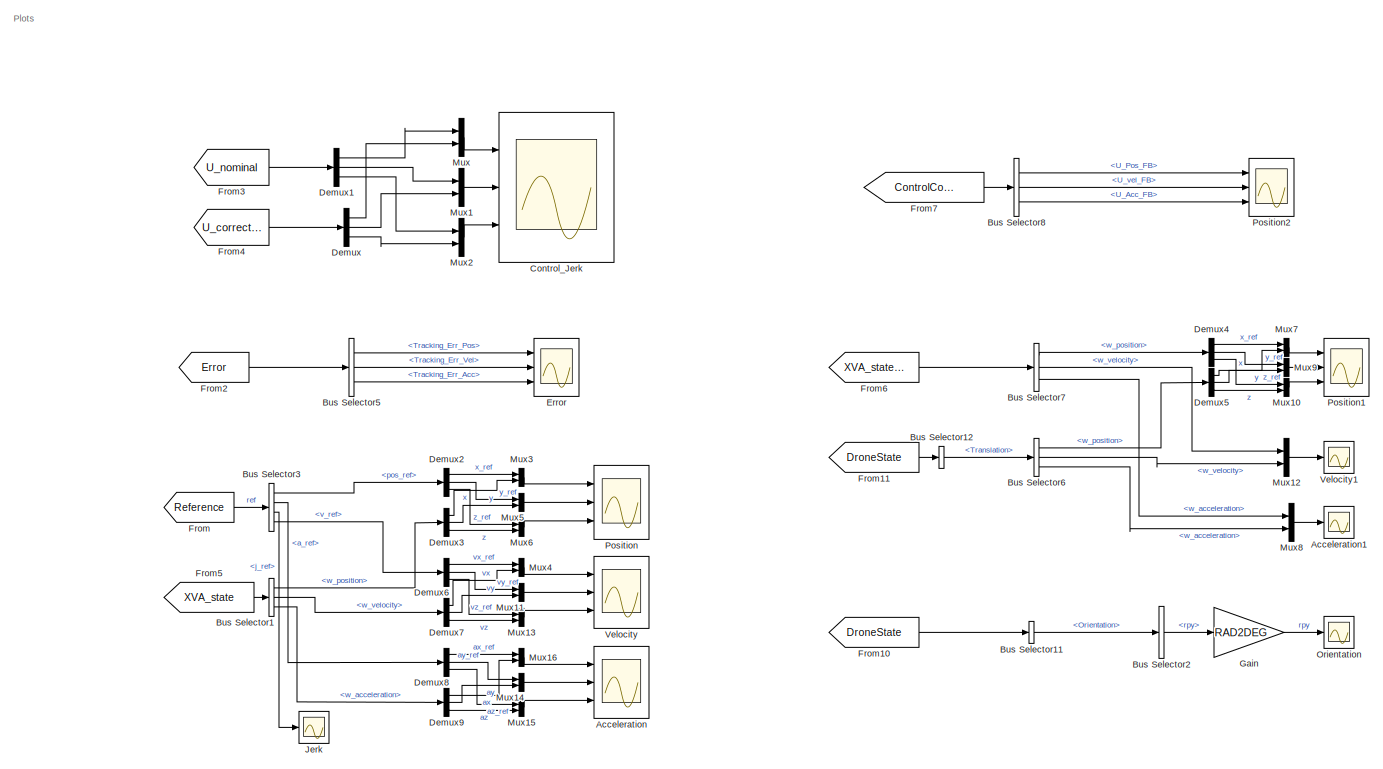
[diagram: root canvas - part 1/7, top center region]
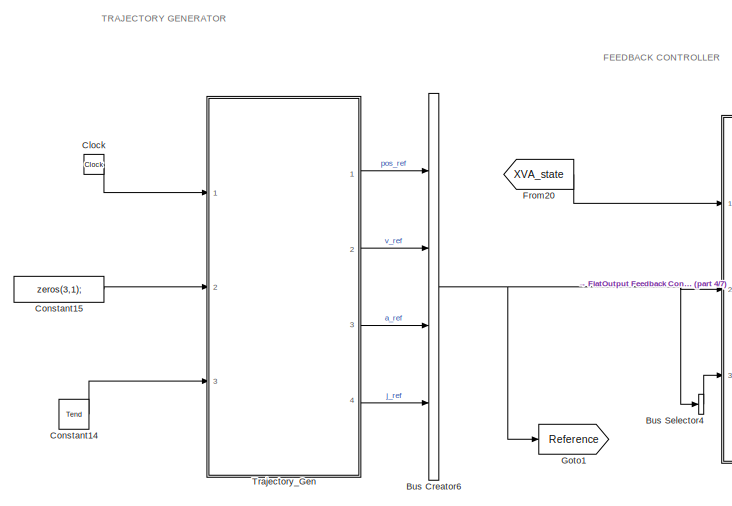
[diagram: root canvas - part 2/7, middle left region]
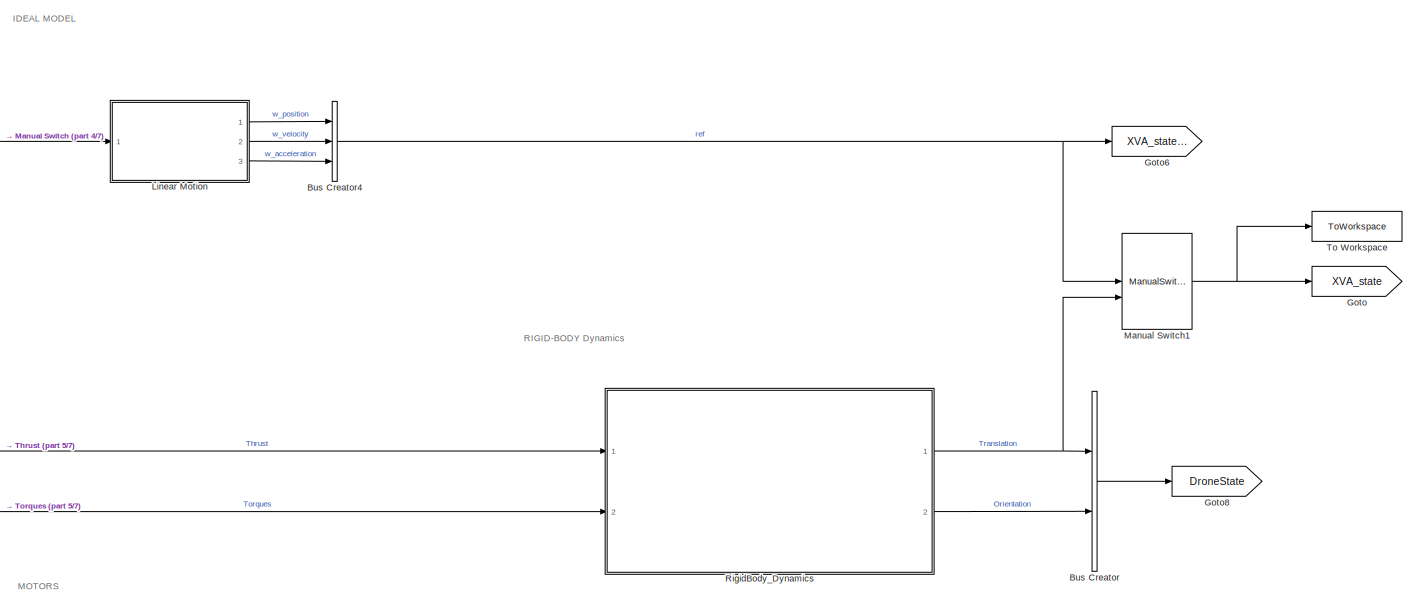
[diagram: root canvas - part 3/7, middle right region]
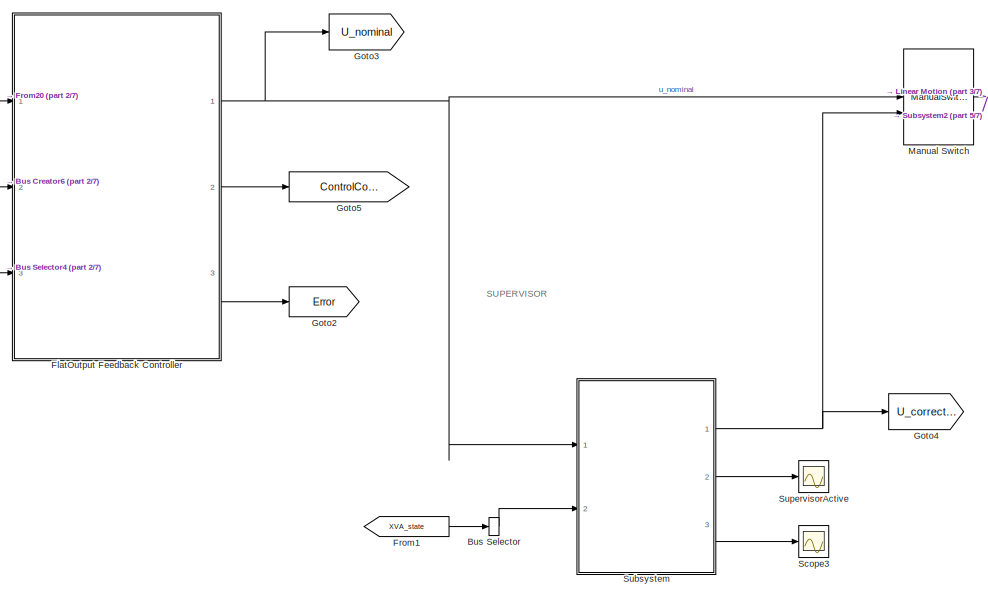
[diagram: root canvas - part 4/7, middle left region]
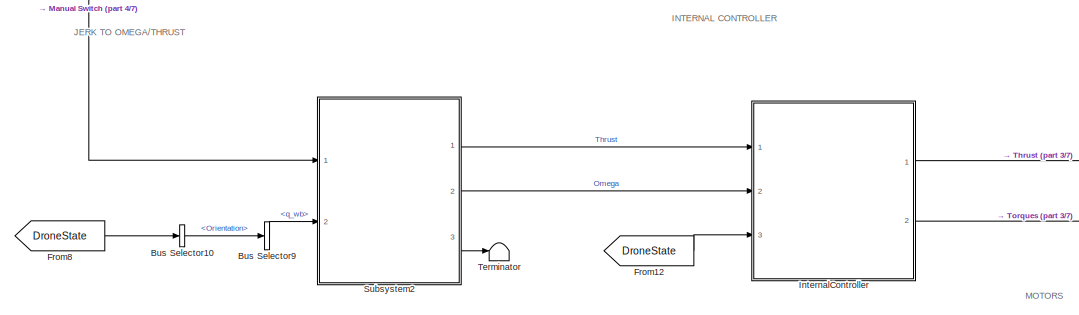
[diagram: root canvas - part 5/7, central region]
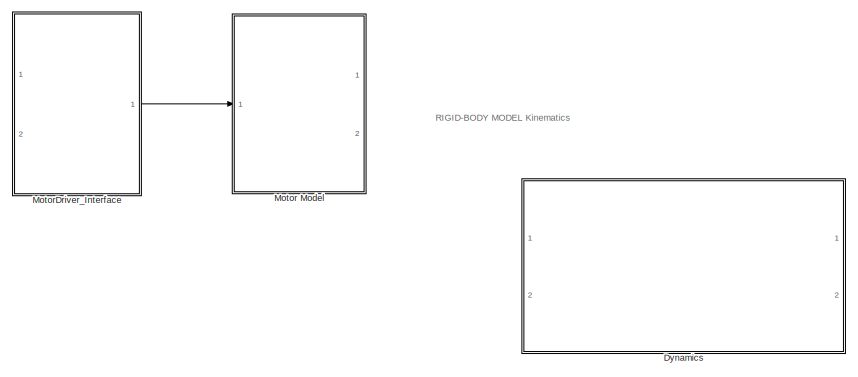
[diagram: root canvas - part 6/7, bottom right region]
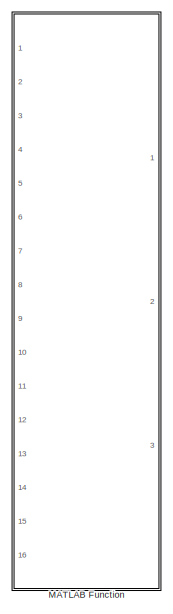
[diagram: root canvas - part 7/7, bottom left region]
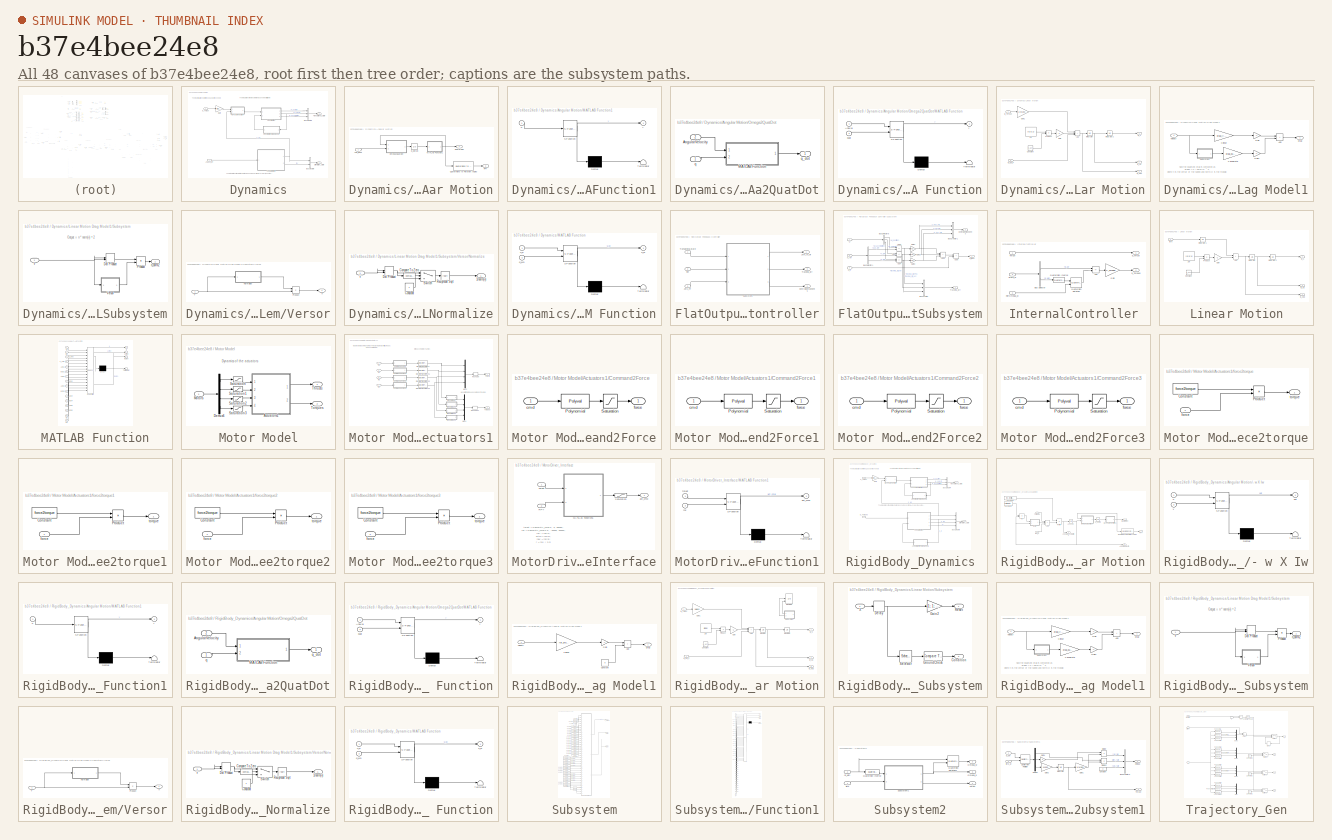
[diagram: thumbnail index - all 48 canvases of the model, root first then tree order]
MODEL slx_b37e4bee24e8
KIND model
CONFIG AbsTol = auto
CONFIG EnableMultiTasking = off
CONFIG FixedStep = sim_dt
CONFIG MaxStep = auto
CONFIG MinStep = auto
CONFIG RelTol = 1e-3
CONFIG SampleTimeConstraint = Unconstrained
CONFIG SolverName = ode1
CONFIG StartTime = 0.0
CONFIG StopTime = Tend
BLOCK [Scope] Acceleration
  Floating = off
  NumInputPorts = 3
  Ports = [3]
  ScopeSpecificationString = Simulink.scopes.TimeScopeBlockCfg('CurrentConfiguration', extmgr.ConfigurationSet(extmgr.Configuration('Core','General UI',true),extmgr.Configuration('Core','Source UI',true),extmgr.Configuration('Sources','WiredSimulink',true,'DataLoggingVariableName','ScopeData2'),extmgr.Configuration('Visuals','Time Domain',true,'SerializedDisplays',{struct('MinYLimReal','-3.42129','MaxYLimReal','1.6733','YLabe...<+3464ch>
BLOCK [Scope] Acceleration1
  Floating = off
  NumInputPorts = 1
  Ports = [1]
  ScopeSpecificationString = Simulink.scopes.TimeScopeBlockCfg('CurrentConfiguration', extmgr.ConfigurationSet(extmgr.Configuration('Core','General UI',true),extmgr.Configuration('Core','Source UI',true),extmgr.Configuration('Sources','WiredSimulink',true,'DataLoggingVariableName','ScopeData1'),extmgr.Configuration('Visuals','Time Domain',true,'SerializedDisplays',{struct('MinYLimReal','-0.01495','MaxYLimReal','0.01574','YLab...<+1644ch>
BLOCK [BusCreator] Bus Creator
  DisplayOption = bar
  InheritFromInputs = on
  Inputs = 2
  Ports = [2, 1]
BLOCK [BusCreator] Bus Creator4
  DisplayOption = bar
  InheritFromInputs = on
  Inputs = 3
  Ports = [3, 1]
BLOCK [BusCreator] Bus Creator6
  DisplayOption = bar
  InheritFromInputs = on
  Inputs = 4
  Ports = [4, 1]
BLOCK [BusSelector] Bus Selector
  OutputAsBus = on
  OutputSignals = w_position,w_velocity,w_acceleration
  Ports = [1, 1]
BLOCK [BusSelector] Bus Selector1
  OutputSignals = w_position,w_velocity,w_acceleration
  Ports = [1, 3]
BLOCK [BusSelector] Bus Selector10
  OutputSignals = Orientation
  Ports = [1, 1]
BLOCK [BusSelector] Bus Selector11
  OutputSignals = Orientation
  Ports = [1, 1]
BLOCK [BusSelector] Bus Selector12
  OutputSignals = Translation
  Ports = [1, 1]
BLOCK [BusSelector] Bus Selector2
  OutputSignals = rpy
  Ports = [1, 1]
BLOCK [BusSelector] Bus Selector3
  OutputSignals = pos_ref,a_ref,j_ref,v_ref
  Ports = [1, 4]
BLOCK [BusSelector] Bus Selector4
  OutputAsBus = on
  OutputSignals = j_ref
  Ports = [1, 1]
BLOCK [BusSelector] Bus Selector5
  OutputSignals = Tracking_Err_Pos,Tracking_Err_Vel,Tracking_Err_Acc
  Ports = [1, 3]
BLOCK [BusSelector] Bus Selector6
  OutputSignals = w_position,w_velocity,w_acceleration
  Ports = [1, 3]
BLOCK [BusSelector] Bus Selector7
  OutputSignals = w_position,w_velocity,w_acceleration
  Ports = [1, 3]
BLOCK [BusSelector] Bus Selector8
  OutputSignals = U_Pos_FB,U_vel_FB,U_Acc_FB
  Ports = [1, 3]
BLOCK [BusSelector] Bus Selector9
  OutputSignals = q_wb
  Ports = [1, 1]
BLOCK [Clock] Clock
BLOCK [Constant] Constant14
  Value = Tend
BLOCK [Constant] Constant15
  Value = zeros(3,1);
BLOCK [Scope] Control_Jerk
  Floating = off
  NumInputPorts = 3
  Ports = [3]
  ScopeSpecificationString = Simulink.scopes.TimeScopeBlockCfg('CurrentConfiguration', extmgr.ConfigurationSet(extmgr.Configuration('Core','General UI',true),extmgr.Configuration('Core','Source UI',true),extmgr.Configuration('Sources','WiredSimulink',true),extmgr.Configuration('Visuals','Time Domain',true,'SerializedDisplays',{struct('MinYLimReal','-10.21314','MaxYLimReal','-8.21314','YLabelReal','','MinYLimMag','0.00000','Ma...<+2837ch>
BLOCK [Demux] Demux
  Outputs = 3
  Ports = [1, 3]
BLOCK [Demux] Demux1
  Outputs = 3
  Ports = [1, 3]
BLOCK [Demux] Demux2
  Outputs = 3
  Ports = [1, 3]
BLOCK [Demux] Demux3
  Outputs = 3
  Ports = [1, 3]
BLOCK [Demux] Demux4
  Outputs = 3
  Ports = [1, 3]
BLOCK [Demux] Demux5
  Outputs = 3
  Ports = [1, 3]
BLOCK [Demux] Demux6
  Outputs = 3
  Ports = [1, 3]
BLOCK [Demux] Demux7
  Outputs = 3
  Ports = [1, 3]
BLOCK [Demux] Demux8
  Outputs = 3
  Ports = [1, 3]
BLOCK [Demux] Demux9
  Outputs = 3
  Ports = [1, 3]
BLOCK [SubSystem] Dynamics
  Commented = on
  Ports = [2, 2]
  RequestExecContextInheritance = off
BLOCK [SubSystem] Dynamics/Angular Motion
  Ports = [1, 2]
  RequestExecContextInheritance = off
BLOCK [Inport] Dynamics/Angular Motion/Ang_input
BLOCK [SubSystem] Dynamics/Angular Motion/MATLAB Function1
  ErrorFcn = Stateflow.Translate.translate
  PermitHierarchicalResolution = ExplicitOnly
  Ports = [1, 1]
  RequestExecContextInheritance = off
  SFBlockType = MATLAB Function
  TreatAsAtomicUnit = on
BLOCK [Demux] Dynamics/Angular Motion/MATLAB Function1/ Demux 
  Outputs = 1
  Ports = [1, 1]
BLOCK [S-Function] Dynamics/Angular Motion/MATLAB Function1/ SFunction 
  EnableBusSupport = on
  FunctionName = sf_sfun
  PortCounts = [1 2]
  Ports = [1, 2]
  SFcnIsStateOwnerBlock = off
  SFunctionDeploymentMode = off
  Tag = Stateflow S-Function 4
BLOCK [Terminator] Dynamics/Angular Motion/MATLAB Function1/ Terminator 
BLOCK [Inport] Dynamics/Angular Motion/MATLAB Function1/u
BLOCK [Outport] Dynamics/Angular Motion/MATLAB Function1/y
BLOCK [SubSystem] Dynamics/Angular Motion/Omega2QuatDot
  Ports = [2, 1]
  RequestExecContextInheritance = off
BLOCK [Inport] Dynamics/Angular Motion/Omega2QuatDot/AngularVelocity
  Port = 2
BLOCK [SubSystem] Dynamics/Angular Motion/Omega2QuatDot/MATLAB Function
  ErrorFcn = Stateflow.Translate.translate
  PermitHierarchicalResolution = ExplicitOnly
  Ports = [2, 1]
  RequestExecContextInheritance = off
  SFBlockType = MATLAB Function
  TreatAsAtomicUnit = on
BLOCK [Demux] Dynamics/Angular Motion/Omega2QuatDot/MATLAB Function/ Demux 
  Outputs = 1
  Ports = [1, 1]
BLOCK [S-Function] Dynamics/Angular Motion/Omega2QuatDot/MATLAB Function/ SFunction 
  EnableBusSupport = on
  FunctionName = sf_sfun
  PortCounts = [2 2]
  Ports = [2, 2]
  SFcnIsStateOwnerBlock = off
  SFunctionDeploymentMode = off
  Tag = Stateflow S-Function 6
BLOCK [Terminator] Dynamics/Angular Motion/Omega2QuatDot/MATLAB Function/ Terminator 
BLOCK [Inport] Dynamics/Angular Motion/Omega2QuatDot/MATLAB Function/AngVel
BLOCK [Inport] Dynamics/Angular Motion/Omega2QuatDot/MATLAB Function/quat
  Port = 2
BLOCK [Outport] Dynamics/Angular Motion/Omega2QuatDot/MATLAB Function/y
BLOCK [Inport] Dynamics/Angular Motion/Omega2QuatDot/q
BLOCK [Outport] Dynamics/Angular Motion/Omega2QuatDot/q_dot
BLOCK [Outport] Dynamics/Angular Motion/Quaternion
BLOCK [Reference] Dynamics/Angular Motion/Quaternions to Rotation Angles  REF=sharedtransform/Quaternions to Rotation Angles
  AttributesFormatString = Rotation Order: %<rotationOrder>
  Ports = [1, 1]
  SourceBlock = sharedtransform/Quaternions to Rotation Angles
  SourceProductBaseCode = AE,PW,MT,UV,VE,VP
  SourceType = Quat2Ang
BLOCK [Outport] Dynamics/Angular Motion/RPY
  Port = 2
BLOCK [Integrator] Dynamics/Angular Motion/q_dot2q
  InitialCondition = q0
  Ports = [1, 1]
BLOCK [Inport] Dynamics/Angvel_ref
  Port = 2
BLOCK [BusCreator] Dynamics/Bus Creator4
  DisplayOption = bar
  InheritFromInputs = on
  Inputs = 3
  Ports = [3, 1]
BLOCK [BusCreator] Dynamics/Bus Creator5
  DisplayOption = bar
  InheritFromInputs = on
  Inputs = 2
  Ports = [2, 1]
BLOCK [Gain] Dynamics/Gain
  Gain = [0; 0; 1]
BLOCK [SubSystem] Dynamics/Linear Motion
  Ports = [2, 3]
  RequestExecContextInheritance = off
BLOCK [SubSystem] Dynamics/Linear Motion Drag Model1
  NameLocation = top
  Ports = [1, 1]
  RequestExecContextInheritance = off
BLOCK [Sum] Dynamics/Linear Motion Drag Model1/Add
  IconShape = rectangular
  Ports = [2, 1]
BLOCK [Outport] Dynamics/Linear Motion Drag Model1/Drag
BLOCK [Gain] Dynamics/Linear Motion Drag Model1/Gain
  Gain = -1
BLOCK [Gain] Dynamics/Linear Motion Drag Model1/Gain1
  Gain = -1
BLOCK [Gain] Dynamics/Linear Motion Drag Model1/K linear
  Gain = drag_linear
BLOCK [Gain] Dynamics/Linear Motion Drag Model1/K quadratic
  Gain = drag_quadratic
BLOCK [SubSystem] Dynamics/Linear Motion Drag Model1/Subsystem
  Ports = [1, 1]
  RequestExecContextInheritance = off
BLOCK [DotProduct] Dynamics/Linear Motion Drag Model1/Subsystem/Dot Product
  OutDataTypeStr = Inherit: Inherit via internal rule
BLOCK [Product] Dynamics/Linear Motion Drag Model1/Subsystem/Product
  Ports = [2, 1]
BLOCK [SubSystem] Dynamics/Linear Motion Drag Model1/Subsystem/Versor
  Ports = [1, 1]
  RequestExecContextInheritance = off
BLOCK [SubSystem] Dynamics/Linear Motion Drag Model1/Subsystem/Versor/Normalize
  Ports = [1, 1]
  RequestExecContextInheritance = off
BLOCK [Outport] Dynamics/Linear Motion Drag Model1/Subsystem/Versor/Normalize/1//norm(v)
BLOCK [Reference] Dynamics/Linear Motion Drag Model1/Subsystem/Versor/Normalize/Compare To Zero  REF=simulink/Logic and Bit
Operations/Compare
To Zero
  Ports = [1, 1]
  SourceBlock = simulink/Logic and Bit\nOperations/Compare\nTo Zero
  SourceProductBaseCode = SL
  SourceType = Compare To Zero
BLOCK [Constant] Dynamics/Linear Motion Drag Model1/Subsystem/Versor/Normalize/Constant
BLOCK [DotProduct] Dynamics/Linear Motion Drag Model1/Subsystem/Versor/Normalize/Dot Product
  OutDataTypeStr = Inherit: Inherit via internal rule
BLOCK [Sqrt] Dynamics/Linear Motion Drag Model1/Subsystem/Versor/Normalize/Reciprocal Sqrt
  Operator = rSqrt
BLOCK [Switch] Dynamics/Linear Motion Drag Model1/Subsystem/Versor/Normalize/Switch
  Criteria = u2 > Threshold
  InputSameDT = off
  SaturateOnIntegerOverflow = off
BLOCK [Inport] Dynamics/Linear Motion Drag Model1/Subsystem/Versor/Normalize/v
BLOCK [Product] Dynamics/Linear Motion Drag Model1/Subsystem/Versor/Product
  Ports = [2, 1]
BLOCK [Outport] Dynamics/Linear Motion Drag Model1/Subsystem/Versor/n
BLOCK [Inport] Dynamics/Linear Motion Drag Model1/Subsystem/Versor/v
BLOCK [Outport] Dynamics/Linear Motion Drag Model1/Subsystem/n_norm2
BLOCK [Inport] Dynamics/Linear Motion Drag Model1/Subsystem/v
BLOCK [Inport] Dynamics/Linear Motion Drag Model1/Velocity
BLOCK [Sum] Dynamics/Linear Motion/Add
  IconShape = rectangular
  Inputs = +++
  Ports = [3, 1]
BLOCK [Constant] Dynamics/Linear Motion/Constant
  Value = G_acc
BLOCK [Gain] Dynamics/Linear Motion/Gain
  Gain = -1
BLOCK [Gain] Dynamics/Linear Motion/Gain1
  Gain = 1/Mass
BLOCK [Integrator] Dynamics/Linear Motion/Integrator
  ContinuousStateAttributes = 'velocity'
  InitialCondition = InitialVelocity
  Ports = [1, 1]
BLOCK [Integrator] Dynamics/Linear Motion/Integrator2
  ContinuousStateAttributes = 'velocity'
  InitialCondition = InitialPosition
  Ports = [1, 1]
BLOCK [Product] Dynamics/Linear Motion/Product
  Ports = [2, 1]
BLOCK [Constant] Dynamics/Linear Motion/Zw
  Value = [0;0;1]
BLOCK [Inport] Dynamics/Linear Motion/w_Ext_F
  Port = 2
BLOCK [Inport] Dynamics/Linear Motion/w_Thrust
BLOCK [Outport] Dynamics/Linear Motion/w_X
BLOCK [Outport] Dynamics/Linear Motion/w_Xd
  Port = 2
BLOCK [Outport] Dynamics/Linear Motion/w_Xdd
  Port = 3
BLOCK [SubSystem] Dynamics/MATLAB Function
  ErrorFcn = Stateflow.Translate.translate
  PermitHierarchicalResolution = ExplicitOnly
  Ports = [2, 1]
  RequestExecContextInheritance = off
  SFBlockType = MATLAB Function
  TreatAsAtomicUnit = on
BLOCK [Demux] Dynamics/MATLAB Function/ Demux 
  Outputs = 1
  Ports = [1, 1]
BLOCK [S-Function] Dynamics/MATLAB Function/ SFunction 
  EnableBusSupport = on
  FunctionName = sf_sfun
  PortCounts = [2 2]
  Ports = [2, 2]
  SFcnIsStateOwnerBlock = off
  SFunctionDeploymentMode = off
  Tag = Stateflow S-Function 8
BLOCK [Terminator] Dynamics/MATLAB Function/ Terminator 
BLOCK [Inport] Dynamics/MATLAB Function/q_wb
  Port = 2
BLOCK [Inport] Dynamics/MATLAB Function/u_b
BLOCK [Outport] Dynamics/MATLAB Function/u_w
BLOCK [Outport] Dynamics/Orientation_State
  Port = 2
BLOCK [Outport] Dynamics/Translational_State
BLOCK [Inport] Dynamics/b_Thrust
BLOCK [Scope] Error
  Floating = off
  NumInputPorts = 3
  Ports = [3]
  ScopeSpecificationString = Simulink.scopes.TimeScopeBlockCfg('CurrentConfiguration', extmgr.ConfigurationSet(extmgr.Configuration('Core','General UI',true),extmgr.Configuration('Core','Source UI',true),extmgr.Configuration('Sources','WiredSimulink',true,'DataLoggingVariableName','ScopeData2'),extmgr.Configuration('Visuals','Time Domain',true,'SerializedDisplays',{struct('MinYLimReal','-0.47495','MaxYLimReal','4.15739','YLab...<+3335ch>
BLOCK [SubSystem] FlatOutput Feedback Controller
  Ports = [3, 3]
  RequestExecContextInheritance = off
  SystemSampleTime = 0.001
BLOCK [Outport] FlatOutput Feedback Controller/ControlComponents
  Port = 2
BLOCK [Inport] FlatOutput Feedback Controller/Jerk_FF
  Port = 3
BLOCK [Outport] FlatOutput Feedback Controller/Jerk_re_wf
BLOCK [Inport] FlatOutput Feedback Controller/Ref
  Port = 2
BLOCK [SubSystem] FlatOutput Feedback Controller/Subsystem
  Ports = [3, 3]
  RequestExecContextInheritance = off
  SystemSampleTime = controller_dt
  TreatAsAtomicUnit = on
BLOCK [Sum] FlatOutput Feedback Controller/Subsystem/Add2
  IconShape = rectangular
  Inputs = -+
  Ports = [2, 1]
BLOCK [Sum] FlatOutput Feedback Controller/Subsystem/Add3
  IconShape = rectangular
  Inputs = -+
  Ports = [2, 1]
BLOCK [Sum] FlatOutput Feedback Controller/Subsystem/Add4
  IconShape = rectangular
  Inputs = -+
  Ports = [2, 1]
BLOCK [Sum] FlatOutput Feedback Controller/Subsystem/Add5
  IconShape = rectangular
  Inputs = +++
  Ports = [3, 1]
BLOCK [Sum] FlatOutput Feedback Controller/Subsystem/Add6
  IconShape = rectangular
  Ports = [2, 1]
BLOCK [BusCreator] FlatOutput Feedback Controller/Subsystem/Bus Creator
  DisplayOption = bar
  InheritFromInputs = on
  Inputs = 3
  Ports = [3, 1]
BLOCK [BusCreator] FlatOutput Feedback Controller/Subsystem/Bus Creator1
  DisplayOption = bar
  InheritFromInputs = on
  Inputs = 3
  Ports = [3, 1]
BLOCK [BusSelector] FlatOutput Feedback Controller/Subsystem/Bus Selector1
  OutputSignals = pos_ref,v_ref,a_ref
  Ports = [1, 3]
BLOCK [BusSelector] FlatOutput Feedback Controller/Subsystem/Bus Selector8
  OutputSignals = w_position,w_velocity,w_acceleration
  Ports = [1, 3]
BLOCK [Outport] FlatOutput Feedback Controller/Subsystem/ControlComponents
  Port = 3
BLOCK [Gain] FlatOutput Feedback Controller/Subsystem/Gain1
  Gain = K(1)
BLOCK [Gain] FlatOutput Feedback Controller/Subsystem/Gain2
  Gain = K(2)
BLOCK [Gain] FlatOutput Feedback Controller/Subsystem/Gain3
  Gain = K(3)
BLOCK [Outport] FlatOutput Feedback Controller/Subsystem/Tracking_Err
  Port = 2
BLOCK [Inport] FlatOutput Feedback Controller/Subsystem/U_ff
  Port = 3
BLOCK [Outport] FlatOutput Feedback Controller/Subsystem/U_jerk
BLOCK [Inport] FlatOutput Feedback Controller/Subsystem/X
BLOCK [Inport] FlatOutput Feedback Controller/Subsystem/X_ref
  Port = 2
BLOCK [Outport] FlatOutput Feedback Controller/Tracking_Err
  Port = 3
BLOCK [Inport] FlatOutput Feedback Controller/Translational_State
BLOCK [From] From
  GotoTag = Reference
BLOCK [From] From1
  GotoTag = XVA_state
BLOCK [From] From10
  GotoTag = DroneState
BLOCK [From] From11
  GotoTag = DroneState
BLOCK [From] From12
  GotoTag = DroneState
BLOCK [From] From2
  GotoTag = Error
BLOCK [From] From20
  GotoTag = XVA_state
BLOCK [From] From3
  GotoTag = U_nominal
BLOCK [From] From4
  GotoTag = U_corrected
BLOCK [From] From5
  GotoTag = XVA_state
BLOCK [From] From6
  GotoTag = XVA_state_Ideal
BLOCK [From] From7
  GotoTag = ControlCompoents
BLOCK [From] From8
  GotoTag = DroneState
BLOCK [Gain] Gain
  Gain = RAD2DEG
BLOCK [Goto] Goto
  GotoTag = XVA_state
BLOCK [Goto] Goto1
  GotoTag = Reference
BLOCK [Goto] Goto2
  GotoTag = Error
BLOCK [Goto] Goto3
  GotoTag = U_nominal
BLOCK [Goto] Goto4
  GotoTag = U_corrected
BLOCK [Goto] Goto5
  GotoTag = ControlCompoents
BLOCK [Goto] Goto6
  GotoTag = XVA_state_Ideal
BLOCK [Goto] Goto8
  GotoTag = DroneState
BLOCK [SubSystem] InternalController
  Ports = [3, 2]
  RequestExecContextInheritance = off
BLOCK [Sum] InternalController/Add
  IconShape = rectangular
  Inputs = -+
  Ports = [2, 1]
BLOCK [BusSelector] InternalController/Bus Selector
  OutputSignals = Orientation.b_w,Orientation.q_wb
  Ports = [1, 2]
BLOCK [Gain] InternalController/Gain
  Gain = K_omega
BLOCK [Reference] InternalController/Quaternion Inverse  REF=aerolibutil/Quaternion
Inverse
  Ports = [1, 1]
  SourceBlock = aerolibutil/Quaternion\nInverse
  SourceProductBaseCode = AE
  SourceType = Quaternion Inverse
BLOCK [Reference] InternalController/Quaternion Rotation  REF=aerolibutil/Quaternion
Rotation
  Ports = [2, 1]
  SourceBlock = aerolibutil/Quaternion\nRotation
  SourceProductBaseCode = AE
  SourceType = Quaternion Rotation
BLOCK [Inport] InternalController/RefOmega_w
  Port = 2
BLOCK [Inport] InternalController/State_w
  Port = 3
BLOCK [Inport] InternalController/Thrust
BLOCK [Outport] InternalController/b_Thrust
BLOCK [Outport] InternalController/b_Torques
  Port = 2
BLOCK [Scope] Jerk
  Floating = off
  NumInputPorts = 1
  Ports = [1]
  ScopeSpecificationString = Simulink.scopes.TimeScopeBlockCfg('CurrentConfiguration', extmgr.ConfigurationSet(extmgr.Configuration('Core','General UI',true),extmgr.Configuration('Core','Source UI',true),extmgr.Configuration('Sources','WiredSimulink',true,'DataLoggingVariableName','ScopeData1'),extmgr.Configuration('Visuals','Time Domain',true,'SerializedDisplays',{struct('MinYLimReal','-0.00003','MaxYLimReal','0.00227','YLab...<+1748ch>
BLOCK [SubSystem] Linear Motion
  Ports = [1, 3]
  RequestExecContextInheritance = off
BLOCK [Sum] Linear Motion/Add
  IconShape = rectangular
  Ports = [2, 1]
BLOCK [Constant] Linear Motion/Constant
  Value = G_acc
BLOCK [Gain] Linear Motion/Gain
  Gain = -1
BLOCK [Integrator] Linear Motion/Integrator
  ContinuousStateAttributes = 'velocity'
  InitialCondition = InitialVelocity
  Ports = [1, 1]
BLOCK [Integrator] Linear Motion/Integrator1
  ContinuousStateAttributes = 'acceleration'
  InitialCondition = InitialActuatedAcceleration
  Ports = [1, 1]
BLOCK [Integrator] Linear Motion/Integrator2
  ContinuousStateAttributes = 'velocity'
  InitialCondition = InitialPosition
  Ports = [1, 1]
BLOCK [Product] Linear Motion/Product
  Ports = [2, 1]
BLOCK [Constant] Linear Motion/Zw
  Value = [0;0;1]
BLOCK [Inport] Linear Motion/jerk
BLOCK [Outport] Linear Motion/w_X
BLOCK [Outport] Linear Motion/w_Xd
  Port = 2
BLOCK [Outport] Linear Motion/w_Xdd
  Port = 3
BLOCK [SubSystem] MATLAB Function
  Commented = on
  ErrorFcn = Stateflow.Translate.translate
  PermitHierarchicalResolution = ExplicitOnly
  Ports = [16, 3]
  RequestExecContextInheritance = off
  SFBlockType = MATLAB Function
  SystemSampleTime = sim_dt
  TreatAsAtomicUnit = on
BLOCK [Demux] MATLAB Function/ Demux 
  Outputs = 1
  Ports = [1, 1]
BLOCK [S-Function] MATLAB Function/ SFunction 
  EnableBusSupport = on
  FunctionName = sf_sfun
  PortCounts = [16 4]
  Ports = [16, 4]
  SFcnIsStateOwnerBlock = off
  SFunctionDeploymentMode = off
  Tag = Stateflow S-Function 2
BLOCK [Terminator] MATLAB Function/ Terminator 
BLOCK [Inport] MATLAB Function/Acis1
  Port = 5
BLOCK [Inport] MATLAB Function/Acis2
  Port = 7
BLOCK [Inport] MATLAB Function/Acis3
  Port = 9
BLOCK [Inport] MATLAB Function/Acis4
  Port = 11
BLOCK [Inport] MATLAB Function/Acis5
  Port = 13
BLOCK [Inport] MATLAB Function/Ad
BLOCK [Inport] MATLAB Function/Bd
  Port = 2
BLOCK [Inport] MATLAB Function/Fu
  Port = 16
BLOCK [Inport] MATLAB Function/Gu
  Port = 15
BLOCK [Inport] MATLAB Function/U_des
  Port = 3
BLOCK [Outport] MATLAB Function/active
  Port = 2
BLOCK [Inport] MATLAB Function/bcis1
  Port = 6
BLOCK [Inport] MATLAB Function/bcis2
  Port = 8
BLOCK [Inport] MATLAB Function/bcis3
  Port = 10
BLOCK [Inport] MATLAB Function/bcis4
  Port = 12
BLOCK [Inport] MATLAB Function/bcis5
  Port = 14
BLOCK [Outport] MATLAB Function/region
  Port = 3
BLOCK [Outport] MATLAB Function/u
BLOCK [Inport] MATLAB Function/x_curr
  Port = 4
BLOCK [ManualSwitch] Manual Switch
  CurrentSetting = 0
BLOCK [ManualSwitch] Manual Switch1
  CurrentSetting = 0
BLOCK [SubSystem] Motor Model
  Commented = on
  Ports = [1, 2]
  RequestExecContextInheritance = off
BLOCK [SubSystem] Motor Model/Actuators1
  Ports = [4, 2]
  RequestExecContextInheritance = off
BLOCK [SubSystem] Motor Model/Actuators1/Command2Force
  Ports = [1, 1]
  RequestExecContextInheritance = off
BLOCK [Polyval] Motor Model/Actuators1/Command2Force/Polynomial
  Coefs = polynomial_model
BLOCK [Saturate] Motor Model/Actuators1/Command2Force/Saturation
  LowerLimit = 0
  UpperLimit = Force_Upperbound
BLOCK [Inport] Motor Model/Actuators1/Command2Force/cmd
BLOCK [Outport] Motor Model/Actuators1/Command2Force/force
BLOCK [SubSystem] Motor Model/Actuators1/Command2Force1
  Ports = [1, 1]
  RequestExecContextInheritance = off
BLOCK [Polyval] Motor Model/Actuators1/Command2Force1/Polynomial
  Coefs = polynomial_model
BLOCK [Saturate] Motor Model/Actuators1/Command2Force1/Saturation
  LowerLimit = 0
  UpperLimit = Force_Upperbound
BLOCK [Inport] Motor Model/Actuators1/Command2Force1/cmd
BLOCK [Outport] Motor Model/Actuators1/Command2Force1/force
BLOCK [SubSystem] Motor Model/Actuators1/Command2Force2
  Ports = [1, 1]
  RequestExecContextInheritance = off
BLOCK [Polyval] Motor Model/Actuators1/Command2Force2/Polynomial
  Coefs = polynomial_model
BLOCK [Saturate] Motor Model/Actuators1/Command2Force2/Saturation
  LowerLimit = 0
  UpperLimit = Force_Upperbound
BLOCK [Inport] Motor Model/Actuators1/Command2Force2/cmd
BLOCK [Outport] Motor Model/Actuators1/Command2Force2/force
BLOCK [SubSystem] Motor Model/Actuators1/Command2Force3
  Ports = [1, 1]
  RequestExecContextInheritance = off
BLOCK [Polyval] Motor Model/Actuators1/Command2Force3/Polynomial
  Coefs = polynomial_model
BLOCK [Saturate] Motor Model/Actuators1/Command2Force3/Saturation
  LowerLimit = 0
  UpperLimit = Force_Upperbound
BLOCK [Inport] Motor Model/Actuators1/Command2Force3/cmd
BLOCK [Outport] Motor Model/Actuators1/Command2Force3/force
BLOCK [DiscreteTransferFcn] Motor Model/Actuators1/Discrete Transfer Fcn
  Denominator = [1 -0.3679]
  InputPortMap = u0
  Numerator = [0.6321]
  Ports = [1, 1]
  SampleTime = sim_dt
BLOCK [DiscreteTransferFcn] Motor Model/Actuators1/Discrete Transfer Fcn1
  Denominator = [1 -0.3679]
  InputPortMap = u0
  Numerator = [0.6321]
  Ports = [1, 1]
  SampleTime = sim_dt
BLOCK [DiscreteTransferFcn] Motor Model/Actuators1/Discrete Transfer Fcn2
  Denominator = [1 -0.3679]
  InputPortMap = u0
  Numerator = [0.6321]
  Ports = [1, 1]
  SampleTime = sim_dt
BLOCK [DiscreteTransferFcn] Motor Model/Actuators1/Discrete Transfer Fcn3
  Denominator = [1 -0.3679]
  InputPortMap = u0
  Numerator = [0.6321]
  Ports = [1, 1]
  SampleTime = sim_dt
BLOCK [Mux] Motor Model/Actuators1/Mux1
  DisplayOption = bar
  Ports = [4, 1]
BLOCK [Mux] Motor Model/Actuators1/Mux2
  DisplayOption = bar
  Ports = [4, 1]
BLOCK [Reshape] Motor Model/Actuators1/Reshape
  OutputDimensionality = Column vector (2-D)
  Ports = [1, 1]
BLOCK [Reshape] Motor Model/Actuators1/Reshape1
  OutputDimensionality = Column vector (2-D)
  Ports = [1, 1]
BLOCK [Outport] Motor Model/Actuators1/Thrusts
BLOCK [Outport] Motor Model/Actuators1/Torques
  Port = 2
BLOCK [SubSystem] Motor Model/Actuators1/force2torque
  Ports = [1, 1]
  RequestExecContextInheritance = off
BLOCK [Constant] Motor Model/Actuators1/force2torque/Constant
  Value = force2torque
BLOCK [Product] Motor Model/Actuators1/force2torque/Product
  Ports = [2, 1]
BLOCK [Inport] Motor Model/Actuators1/force2torque/force
BLOCK [Outport] Motor Model/Actuators1/force2torque/torque
BLOCK [SubSystem] Motor Model/Actuators1/force2torque1
  Ports = [1, 1]
  RequestExecContextInheritance = off
BLOCK [Constant] Motor Model/Actuators1/force2torque1/Constant
  Value = force2torque
BLOCK [Product] Motor Model/Actuators1/force2torque1/Product
  Ports = [2, 1]
BLOCK [Inport] Motor Model/Actuators1/force2torque1/force
BLOCK [Outport] Motor Model/Actuators1/force2torque1/torque
BLOCK [SubSystem] Motor Model/Actuators1/force2torque2
  Ports = [1, 1]
  RequestExecContextInheritance = off
BLOCK [Constant] Motor Model/Actuators1/force2torque2/Constant
  Value = force2torque
BLOCK [Product] Motor Model/Actuators1/force2torque2/Product
  Ports = [2, 1]
BLOCK [Inport] Motor Model/Actuators1/force2torque2/force
BLOCK [Outport] Motor Model/Actuators1/force2torque2/torque
BLOCK [SubSystem] Motor Model/Actuators1/force2torque3
  Ports = [1, 1]
  RequestExecContextInheritance = off
BLOCK [Constant] Motor Model/Actuators1/force2torque3/Constant
  Value = force2torque
BLOCK [Product] Motor Model/Actuators1/force2torque3/Product
  Ports = [2, 1]
BLOCK [Inport] Motor Model/Actuators1/force2torque3/force
BLOCK [Outport] Motor Model/Actuators1/force2torque3/torque
BLOCK [Inport] Motor Model/Actuators1/m1
BLOCK [Inport] Motor Model/Actuators1/m2
  Port = 2
BLOCK [Inport] Motor Model/Actuators1/m3
  Port = 3
BLOCK [Inport] Motor Model/Actuators1/m4
  Port = 4
BLOCK [Demux] Motor Model/Demux6
  Ports = [1, 4]
BLOCK [Inport] Motor Model/Motors
BLOCK [Saturate] Motor Model/Saturation
  LowerLimit = 0
  UpperLimit = 65535
BLOCK [Saturate] Motor Model/Saturation1
  LowerLimit = 0
  UpperLimit = 65535
BLOCK [Saturate] Motor Model/Saturation2
  LowerLimit = 0
  UpperLimit = 65535
BLOCK [Saturate] Motor Model/Saturation3
  LowerLimit = 0
  UpperLimit = 65535
BLOCK [Outport] Motor Model/Thrusts
BLOCK [Outport] Motor Model/Torques
  Port = 2
BLOCK [SubSystem] MotorDriver_Interface
  Commented = on
  Ports = [2, 1]
  RequestExecContextInheritance = off
BLOCK [SubSystem] MotorDriver_Interface/MATLAB Function1
  ErrorFcn = Stateflow.Translate.translate
  PermitHierarchicalResolution = ExplicitOnly
  Ports = [2, 1]
  RequestExecContextInheritance = off
  SFBlockType = MATLAB Function
  TreatAsAtomicUnit = on
BLOCK [Demux] MotorDriver_Interface/MATLAB Function1/ Demux 
  Outputs = 1
  Ports = [1, 1]
BLOCK [S-Function] MotorDriver_Interface/MATLAB Function1/ SFunction 
  EnableBusSupport = on
  FunctionName = sf_sfun
  PortCounts = [2 2]
  Ports = [2, 2]
  SFcnIsStateOwnerBlock = off
  SFunctionDeploymentMode = off
  Tag = Stateflow S-Function 7
BLOCK [Terminator] MotorDriver_Interface/MATLAB Function1/ Terminator 
BLOCK [Outport] MotorDriver_Interface/MATLAB Function1/act_cmd
BLOCK [Inport] MotorDriver_Interface/MATLAB Function1/rpy
  Port = 2
BLOCK [Inport] MotorDriver_Interface/MATLAB Function1/thrust
BLOCK [Inport] MotorDriver_Interface/RPY
  Port = 2
BLOCK [Saturate] MotorDriver_Interface/Saturation
  LowerLimit = 0
  UpperLimit = 65535
BLOCK [Inport] MotorDriver_Interface/Thrust
BLOCK [Outport] MotorDriver_Interface/act_cmd
BLOCK [Mux] Mux
  DisplayOption = bar
  Inputs = 2
  Ports = [2, 1]
BLOCK [Mux] Mux1
  DisplayOption = bar
  Inputs = 2
  Ports = [2, 1]
BLOCK [Mux] Mux10
  DisplayOption = bar
  Inputs = 2
  Ports = [2, 1]
BLOCK [Mux] Mux11
  DisplayOption = bar
  Inputs = 2
  Ports = [2, 1]
BLOCK [Mux] Mux12
  DisplayOption = bar
  Inputs = 2
  Ports = [2, 1]
BLOCK [Mux] Mux13
  DisplayOption = bar
  Inputs = 2
  Ports = [2, 1]
BLOCK [Mux] Mux14
  DisplayOption = bar
  Inputs = 2
  Ports = [2, 1]
BLOCK [Mux] Mux15
  DisplayOption = bar
  Inputs = 2
  Ports = [2, 1]
BLOCK [Mux] Mux16
  DisplayOption = bar
  Inputs = 2
  Ports = [2, 1]
BLOCK [Mux] Mux2
  DisplayOption = bar
  Inputs = 2
  Ports = [2, 1]
BLOCK [Mux] Mux3
  DisplayOption = bar
  Inputs = 2
  Ports = [2, 1]
BLOCK [Mux] Mux4
  DisplayOption = bar
  Inputs = 2
  Ports = [2, 1]
BLOCK [Mux] Mux5
  DisplayOption = bar
  Inputs = 2
  Ports = [2, 1]
BLOCK [Mux] Mux6
  DisplayOption = bar
  Inputs = 2
  Ports = [2, 1]
BLOCK [Mux] Mux7
  DisplayOption = bar
  Inputs = 2
  Ports = [2, 1]
BLOCK [Mux] Mux8
  DisplayOption = bar
  Inputs = 2
  Ports = [2, 1]
BLOCK [Mux] Mux9
  DisplayOption = bar
  Inputs = 2
  Ports = [2, 1]
BLOCK [Scope] Orientation
  Floating = off
  NumInputPorts = 1
  Ports = [1]
  ScopeSpecificationString = Simulink.scopes.TimeScopeBlockCfg('CurrentConfiguration', extmgr.ConfigurationSet(extmgr.Configuration('Core','General UI',true),extmgr.Configuration('Core','Source UI',true),extmgr.Configuration('Sources','WiredSimulink',true,'DataLoggingVariableName','ScopeData7'),extmgr.Configuration('Visuals','Time Domain',true,'SerializedDisplays',{struct('MinYLimReal','-0.20086','MaxYLimReal','0.19948','YLab...<+1521ch>
BLOCK [Scope] Position
  Floating = off
  NumInputPorts = 3
  Ports = [3]
  ScopeSpecificationString = Simulink.scopes.TimeScopeBlockCfg('CurrentConfiguration', extmgr.ConfigurationSet(extmgr.Configuration('Core','General UI',true),extmgr.Configuration('Core','Source UI',true),extmgr.Configuration('Sources','WiredSimulink',true,'DataLoggingVariableName','ScopeData1'),extmgr.Configuration('Visuals','Time Domain',true,'SerializedDisplays',{struct('MinYLimReal','-1.43746','MaxYLimReal','2.93716','YLab...<+3530ch>
BLOCK [Scope] Position1
  Floating = off
  NumInputPorts = 3
  Ports = [3]
  ScopeSpecificationString = Simulink.scopes.TimeScopeBlockCfg('CurrentConfiguration', extmgr.ConfigurationSet(extmgr.Configuration('Core','General UI',true),extmgr.Configuration('Core','Source UI',true),extmgr.Configuration('Sources','WiredSimulink',true,'DataLoggingVariableName','ScopeData3'),extmgr.Configuration('Visuals','Time Domain',true,'SerializedDisplays',{struct('MinYLimReal','-2.56249','MaxYLimReal','3.06245','YLab...<+3301ch>
BLOCK [Scope] Position2
  Floating = off
  NumInputPorts = 3
  Ports = [3]
  ScopeSpecificationString = Simulink.scopes.TimeScopeBlockCfg('CurrentConfiguration', extmgr.ConfigurationSet(extmgr.Configuration('Core','General UI',true),extmgr.Configuration('Core','Source UI',true),extmgr.Configuration('Sources','WiredSimulink',true,'DataLoggingVariableName','ScopeData5'),extmgr.Configuration('Visuals','Time Domain',true,'SerializedDisplays',{struct('MinYLimReal','-1.41919','MaxYLimReal','12.42268','YLa...<+3407ch>
BLOCK [SubSystem] RigidBody_Dynamics
  Ports = [2, 2]
  RequestExecContextInheritance = off
BLOCK [SubSystem] RigidBody_Dynamics/Angular Motion
  Ports = [2, 4]
  RequestExecContextInheritance = off
BLOCK [SubSystem] RigidBody_Dynamics/Angular Motion Drag Model1
  NameLocation = top
  Ports = [1, 1]
  RequestExecContextInheritance = off
BLOCK [Sum] RigidBody_Dynamics/Angular Motion Drag Model1/Add
  IconShape = rectangular
  Ports = [2, 1]
BLOCK [Constant] RigidBody_Dynamics/Angular Motion Drag Model1/Constant
  Value = 0
BLOCK [Outport] RigidBody_Dynamics/Angular Motion Drag Model1/Drag
BLOCK [Gain] RigidBody_Dynamics/Angular Motion Drag Model1/Gain
  Gain = -1
BLOCK [Gain] RigidBody_Dynamics/Angular Motion Drag Model1/K linear
  Gain = rot_drag_linear
BLOCK [Inport] RigidBody_Dynamics/Angular Motion Drag Model1/Velocity
BLOCK [SubSystem] RigidBody_Dynamics/Angular Motion/- w X Iw
  ErrorFcn = Stateflow.Translate.translate
  PermitHierarchicalResolution = ExplicitOnly
  Ports = [2, 1]
  RequestExecContextInheritance = off
  SFBlockType = MATLAB Function
  TreatAsAtomicUnit = on
BLOCK [Demux] RigidBody_Dynamics/Angular Motion/- w X Iw/ Demux 
  Outputs = 1
  Ports = [1, 1]
BLOCK [S-Function] RigidBody_Dynamics/Angular Motion/- w X Iw/ SFunction 
  EnableBusSupport = on
  FunctionName = sf_sfun
  PortCounts = [2 2]
  Ports = [2, 2]
  SFcnIsStateOwnerBlock = off
  SFunctionDeploymentMode = off
  Tag = Stateflow S-Function 3
BLOCK [Terminator] RigidBody_Dynamics/Angular Motion/- w X Iw/ Terminator 
BLOCK [Outport] RigidBody_Dynamics/Angular Motion/- w X Iw/out
BLOCK [Inport] RigidBody_Dynamics/Angular Motion/- w X Iw/u
BLOCK [Inport] RigidBody_Dynamics/Angular Motion/- w X Iw/v
  Port = 2
BLOCK [Integrator] RigidBody_Dynamics/Angular Motion/Acc2Vel
  InitialCondition = InitialAngularVelocity
  Ports = [1, 1]
BLOCK [Sum] RigidBody_Dynamics/Angular Motion/Add
  IconShape = rectangular
  Inputs = +++
  Ports = [3, 1]
BLOCK [Outport] RigidBody_Dynamics/Angular Motion/AngularAcceleration
  Port = 3
BLOCK [Outport] RigidBody_Dynamics/Angular Motion/AngularVelocity
  Port = 2
BLOCK [Constant] RigidBody_Dynamics/Angular Motion/Constant1
  Value = InertiaMatrix
BLOCK [Constant] RigidBody_Dynamics/Angular Motion/Constant2
  Value = Inv_InertiaMatrix
BLOCK [Inport] RigidBody_Dynamics/Angular Motion/Ext_T
  Port = 2
BLOCK [Product] RigidBody_Dynamics/Angular Motion/I w
  Multiplication = Matrix(*)
  Ports = [2, 1]
BLOCK [SubSystem] RigidBody_Dynamics/Angular Motion/MATLAB Function1
  ErrorFcn = Stateflow.Translate.translate
  PermitHierarchicalResolution = ExplicitOnly
  Ports = [1, 1]
  RequestExecContextInheritance = off
  SFBlockType = MATLAB Function
  TreatAsAtomicUnit = on
BLOCK [Demux] RigidBody_Dynamics/Angular Motion/MATLAB Function1/ Demux 
  Outputs = 1
  Ports = [1, 1]
BLOCK [S-Function] RigidBody_Dynamics/Angular Motion/MATLAB Function1/ SFunction 
  EnableBusSupport = on
  FunctionName = sf_sfun
  PortCounts = [1 2]
  Ports = [1, 2]
  SFcnIsStateOwnerBlock = off
  SFunctionDeploymentMode = off
  Tag = Stateflow S-Function 9
BLOCK [Terminator] RigidBody_Dynamics/Angular Motion/MATLAB Function1/ Terminator 
BLOCK [Inport] RigidBody_Dynamics/Angular Motion/MATLAB Function1/u
BLOCK [Outport] RigidBody_Dynamics/Angular Motion/MATLAB Function1/y
BLOCK [SubSystem] RigidBody_Dynamics/Angular Motion/Omega2QuatDot
  Ports = [2, 1]
  RequestExecContextInheritance = off
BLOCK [Inport] RigidBody_Dynamics/Angular Motion/Omega2QuatDot/AngularVelocity
  Port = 2
BLOCK [SubSystem] RigidBody_Dynamics/Angular Motion/Omega2QuatDot/MATLAB Function
  ErrorFcn = Stateflow.Translate.translate
  PermitHierarchicalResolution = ExplicitOnly
  Ports = [2, 1]
  RequestExecContextInheritance = off
  SFBlockType = MATLAB Function
  TreatAsAtomicUnit = on
BLOCK [Demux] RigidBody_Dynamics/Angular Motion/Omega2QuatDot/MATLAB Function/ Demux 
  Outputs = 1
  Ports = [1, 1]
BLOCK [S-Function] RigidBody_Dynamics/Angular Motion/Omega2QuatDot/MATLAB Function/ SFunction 
  EnableBusSupport = on
  FunctionName = sf_sfun
  PortCounts = [2 2]
  Ports = [2, 2]
  SFcnIsStateOwnerBlock = off
  SFunctionDeploymentMode = off
  Tag = Stateflow S-Function 5
BLOCK [Terminator] RigidBody_Dynamics/Angular Motion/Omega2QuatDot/MATLAB Function/ Terminator 
BLOCK [Inport] RigidBody_Dynamics/Angular Motion/Omega2QuatDot/MATLAB Function/AngVel
BLOCK [Inport] RigidBody_Dynamics/Angular Motion/Omega2QuatDot/MATLAB Function/quat
  Port = 2
BLOCK [Outport] RigidBody_Dynamics/Angular Motion/Omega2QuatDot/MATLAB Function/y
BLOCK [Inport] RigidBody_Dynamics/Angular Motion/Omega2QuatDot/q
BLOCK [Outport] RigidBody_Dynamics/Angular Motion/Omega2QuatDot/q_dot
BLOCK [Outport] RigidBody_Dynamics/Angular Motion/Quaternion
BLOCK [Reference] RigidBody_Dynamics/Angular Motion/Quaternions to Rotation Angles  REF=sharedtransform/Quaternions to Rotation Angles
  AttributesFormatString = Rotation Order: %<rotationOrder>
  Ports = [1, 1]
  SourceBlock = sharedtransform/Quaternions to Rotation Angles
  SourceProductBaseCode = AE,PW,MT,UV,VE,VP
  SourceType = Quat2Ang
BLOCK [Outport] RigidBody_Dynamics/Angular Motion/RPY
  Port = 4
BLOCK [Inport] RigidBody_Dynamics/Angular Motion/Torques
BLOCK [Product] RigidBody_Dynamics/Angular Motion/inv(I) * t
  Multiplication = Matrix(*)
  Ports = [2, 1]
BLOCK [Integrator] RigidBody_Dynamics/Angular Motion/q_dot2q
  InitialCondition = q0
  Ports = [1, 1]
BLOCK [BusCreator] RigidBody_Dynamics/Bus Creator4
  DisplayOption = bar
  InheritFromInputs = on
  Inputs = 3
  Ports = [3, 1]
BLOCK [BusCreator] RigidBody_Dynamics/Bus Creator5
  DisplayOption = bar
  InheritFromInputs = on
  Inputs = 4
  Ports = [4, 1]
BLOCK [Gain] RigidBody_Dynamics/Gain
  Gain = [0; 0; 1]
BLOCK [SubSystem] RigidBody_Dynamics/Linear Motion
  Ports = [2, 3]
  RequestExecContextInheritance = off
BLOCK [SubSystem] RigidBody_Dynamics/Linear Motion Drag Model1
  NameLocation = top
  Ports = [1, 1]
  RequestExecContextInheritance = off
BLOCK [Sum] RigidBody_Dynamics/Linear Motion Drag Model1/Add
  IconShape = rectangular
  Ports = [2, 1]
BLOCK [Outport] RigidBody_Dynamics/Linear Motion Drag Model1/Drag
BLOCK [Gain] RigidBody_Dynamics/Linear Motion Drag Model1/Gain
  Gain = -1
BLOCK [Gain] RigidBody_Dynamics/Linear Motion Drag Model1/Gain1
  Gain = -1
BLOCK [Gain] RigidBody_Dynamics/Linear Motion Drag Model1/K linear
  Gain = drag_linear
BLOCK [Gain] RigidBody_Dynamics/Linear Motion Drag Model1/K quadratic
  Gain = drag_quadratic
BLOCK [SubSystem] RigidBody_Dynamics/Linear Motion Drag Model1/Subsystem
  Ports = [1, 1]
  RequestExecContextInheritance = off
BLOCK [DotProduct] RigidBody_Dynamics/Linear Motion Drag Model1/Subsystem/Dot Product
  OutDataTypeStr = Inherit: Inherit via internal rule
BLOCK [Product] RigidBody_Dynamics/Linear Motion Drag Model1/Subsystem/Product
  Ports = [2, 1]
BLOCK [SubSystem] RigidBody_Dynamics/Linear Motion Drag Model1/Subsystem/Versor
  Ports = [1, 1]
  RequestExecContextInheritance = off
BLOCK [SubSystem] RigidBody_Dynamics/Linear Motion Drag Model1/Subsystem/Versor/Normalize
  Ports = [1, 1]
  RequestExecContextInheritance = off
BLOCK [Outport] RigidBody_Dynamics/Linear Motion Drag Model1/Subsystem/Versor/Normalize/1//norm(v)
BLOCK [Reference] RigidBody_Dynamics/Linear Motion Drag Model1/Subsystem/Versor/Normalize/Compare To Zero  REF=simulink/Logic and Bit
Operations/Compare
To Zero
  Ports = [1, 1]
  SourceBlock = simulink/Logic and Bit\nOperations/Compare\nTo Zero
  SourceProductBaseCode = SL
  SourceType = Compare To Zero
BLOCK [Constant] RigidBody_Dynamics/Linear Motion Drag Model1/Subsystem/Versor/Normalize/Constant
BLOCK [DotProduct] RigidBody_Dynamics/Linear Motion Drag Model1/Subsystem/Versor/Normalize/Dot Product
  OutDataTypeStr = Inherit: Inherit via internal rule
BLOCK [Sqrt] RigidBody_Dynamics/Linear Motion Drag Model1/Subsystem/Versor/Normalize/Reciprocal Sqrt
  Operator = rSqrt
BLOCK [Switch] RigidBody_Dynamics/Linear Motion Drag Model1/Subsystem/Versor/Normalize/Switch
  Criteria = u2 > Threshold
  InputSameDT = off
  SaturateOnIntegerOverflow = off
BLOCK [Inport] RigidBody_Dynamics/Linear Motion Drag Model1/Subsystem/Versor/Normalize/v
BLOCK [Product] RigidBody_Dynamics/Linear Motion Drag Model1/Subsystem/Versor/Product
  Ports = [2, 1]
BLOCK [Outport] RigidBody_Dynamics/Linear Motion Drag Model1/Subsystem/Versor/n
BLOCK [Inport] RigidBody_Dynamics/Linear Motion Drag Model1/Subsystem/Versor/v
BLOCK [Outport] RigidBody_Dynamics/Linear Motion Drag Model1/Subsystem/n_norm2
BLOCK [Inport] RigidBody_Dynamics/Linear Motion Drag Model1/Subsystem/v
BLOCK [Inport] RigidBody_Dynamics/Linear Motion Drag Model1/Velocity
BLOCK [Sum] RigidBody_Dynamics/Linear Motion/Add
  IconShape = rectangular
  Inputs = +++
  Ports = [3, 1]
BLOCK [Constant] RigidBody_Dynamics/Linear Motion/Constant
  Value = G_acc
BLOCK [Gain] RigidBody_Dynamics/Linear Motion/Gain
  Gain = -1
BLOCK [Gain] RigidBody_Dynamics/Linear Motion/Gain1
  Gain = 1/Mass
BLOCK [Integrator] RigidBody_Dynamics/Linear Motion/Integrator
  ContinuousStateAttributes = 'velocity'
  InitialCondition = InitialVelocity
  Ports = [1, 1]
BLOCK [Integrator] RigidBody_Dynamics/Linear Motion/Integrator1
  Commented = on
  ContinuousStateAttributes = 'position'
  ExternalReset = level
  InitialCondition = InitialPosition
  InitialConditionSource = external
  Ports = [3, 1]
BLOCK [Integrator] RigidBody_Dynamics/Linear Motion/Integrator2
  ContinuousStateAttributes = 'position'
  InitialCondition = InitialPosition
  Ports = [1, 1]
BLOCK [Product] RigidBody_Dynamics/Linear Motion/Product
  Ports = [2, 1]
BLOCK [SubSystem] RigidBody_Dynamics/Linear Motion/Subsystem
  Commented = on
  NameLocation = top
  Ports = [1, 2]
  RequestExecContextInheritance = off
BLOCK [Outport] RigidBody_Dynamics/Linear Motion/Subsystem/Condition
  Port = 2
BLOCK [Delay] RigidBody_Dynamics/Linear Motion/Subsystem/Delay
  DelayLength = 1
  InitialCondition = 0
  InputPortMap = u0
  Ports = [1, 1]
BLOCK [Gain] RigidBody_Dynamics/Linear Motion/Subsystem/Gain2
  Gain = [1; 1; 0]
BLOCK [Reference] RigidBody_Dynamics/Linear Motion/Subsystem/GroundCheck  REF=simulink/Logic and Bit
Operations/Compare
To Constant
  Ports = [1, 1]
  SourceBlock = simulink/Logic and Bit\nOperations/Compare\nTo Constant
  SourceProductBaseCode = SL
  SourceType = Compare To Constant
BLOCK [Outport] RigidBody_Dynamics/Linear Motion/Subsystem/Reset
BLOCK [Selector] RigidBody_Dynamics/Linear Motion/Subsystem/Selector
  IndexOptions = Index vector (dialog)
  Indices = [3]
  InputPortWidth = 3
  OutputSizes = 1
  Ports = [1, 1]
BLOCK [Inport] RigidBody_Dynamics/Linear Motion/Subsystem/X
BLOCK [Constant] RigidBody_Dynamics/Linear Motion/Zw
  Value = [0;0;1]
BLOCK [Inport] RigidBody_Dynamics/Linear Motion/w_Ext_F
  Port = 2
BLOCK [Inport] RigidBody_Dynamics/Linear Motion/w_Thrust
BLOCK [Outport] RigidBody_Dynamics/Linear Motion/w_X
BLOCK [Outport] RigidBody_Dynamics/Linear Motion/w_Xd
  Port = 2
BLOCK [Outport] RigidBody_Dynamics/Linear Motion/w_Xdd
  Port = 3
BLOCK [SubSystem] RigidBody_Dynamics/MATLAB Function
  ErrorFcn = Stateflow.Translate.translate
  PermitHierarchicalResolution = ExplicitOnly
  Ports = [2, 1]
  RequestExecContextInheritance = off
  SFBlockType = MATLAB Function
  TreatAsAtomicUnit = on
BLOCK [Demux] RigidBody_Dynamics/MATLAB Function/ Demux 
  Outputs = 1
  Ports = [1, 1]
BLOCK [S-Function] RigidBody_Dynamics/MATLAB Function/ SFunction 
  EnableBusSupport = on
  FunctionName = sf_sfun
  PortCounts = [2 2]
  Ports = [2, 2]
  SFcnIsStateOwnerBlock = off
  SFunctionDeploymentMode = off
  Tag = Stateflow S-Function 10
BLOCK [Terminator] RigidBody_Dynamics/MATLAB Function/ Terminator 
BLOCK [Inport] RigidBody_Dynamics/MATLAB Function/q_wb
  Port = 2
BLOCK [Inport] RigidBody_Dynamics/MATLAB Function/u_b
BLOCK [Outport] RigidBody_Dynamics/MATLAB Function/u_w
BLOCK [Outport] RigidBody_Dynamics/Orientation_State
  Port = 2
BLOCK [Outport] RigidBody_Dynamics/Translational_State
BLOCK [Inport] RigidBody_Dynamics/b_Thrust
BLOCK [Inport] RigidBody_Dynamics/b_Torques
  Port = 2
BLOCK [Scope] Scope3
  Floating = off
  NumInputPorts = 1
  Ports = [1]
  ScopeSpecificationString = Simulink.scopes.TimeScopeBlockCfg('CurrentConfiguration', extmgr.ConfigurationSet(extmgr.Configuration('Core','General UI',true),extmgr.Configuration('Core','Source UI',true),extmgr.Configuration('Sources','WiredSimulink',true,'DataLoggingVariableName','ScopeData5'),extmgr.Configuration('Visuals','Time Domain',true,'SerializedDisplays',{struct('MinYLimReal','-2.375','MaxYLimReal','5.00000','YLabel...<+1483ch>
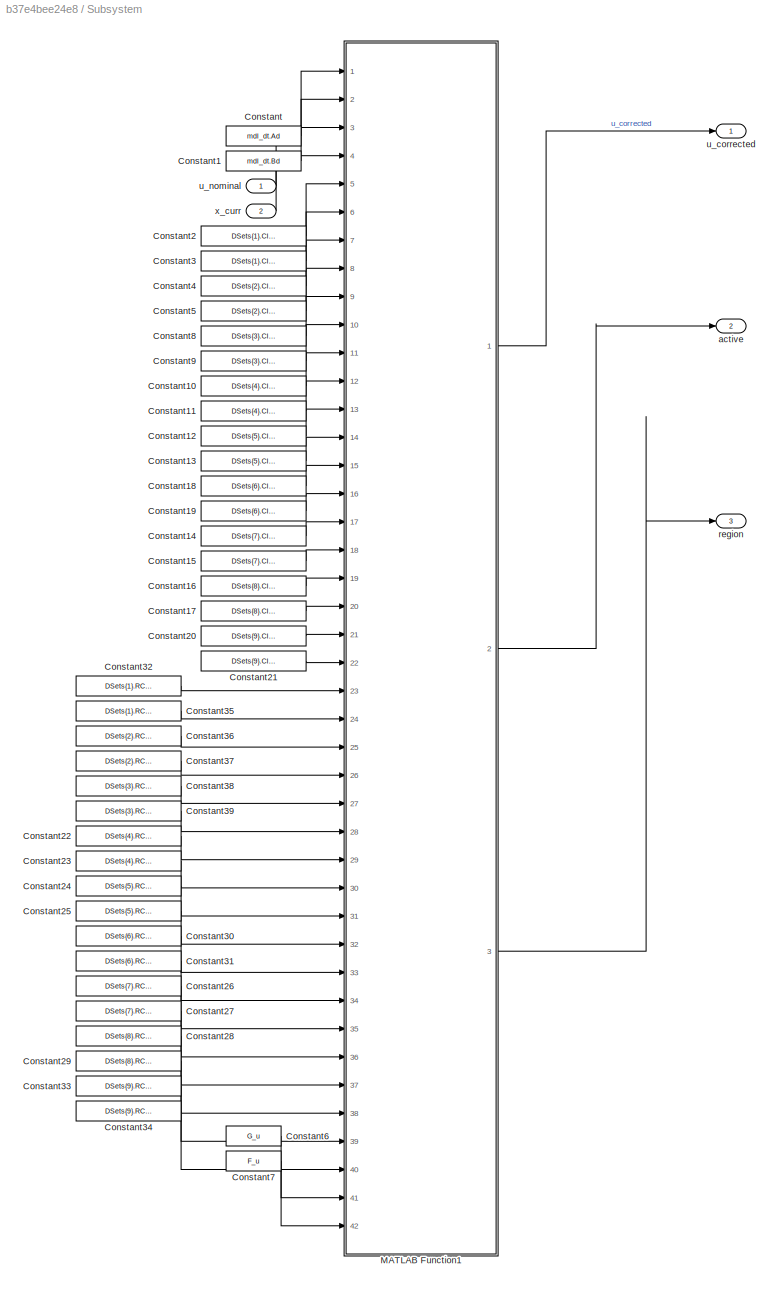
BLOCK [SubSystem] Subsystem
  Ports = [2, 3]
  RequestExecContextInheritance = off
  SystemSampleTime = ctrl_dt
  TreatAsAtomicUnit = on
BLOCK [Constant] Subsystem/Constant
  Value = mdl_dt.Ad
BLOCK [Constant] Subsystem/Constant1
  Value = mdl_dt.Bd
BLOCK [Constant] Subsystem/Constant10
  Value = DSets{4}.CIS.A;
BLOCK [Constant] Subsystem/Constant11
  Value = DSets{4}.CIS.b;
BLOCK [Constant] Subsystem/Constant12
  Value = DSets{5}.CIS.A;
BLOCK [Constant] Subsystem/Constant13
  Value = DSets{5}.CIS.b;
BLOCK [Constant] Subsystem/Constant14
  Value = DSets{7}.CIS.A;
BLOCK [Constant] Subsystem/Constant15
  Value = DSets{7}.CIS.b;
BLOCK [Constant] Subsystem/Constant16
  Value = DSets{8}.CIS.A;
BLOCK [Constant] Subsystem/Constant17
  Value = DSets{8}.CIS.b;
BLOCK [Constant] Subsystem/Constant18
  Value = DSets{6}.CIS.A;
BLOCK [Constant] Subsystem/Constant19
  Value = DSets{6}.CIS.b;
BLOCK [Constant] Subsystem/Constant2
  Value = DSets{1}.CIS.A
BLOCK [Constant] Subsystem/Constant20
  Value = DSets{9}.CIS.A;
BLOCK [Constant] Subsystem/Constant21
  Value = DSets{9}.CIS.b;
BLOCK [Constant] Subsystem/Constant22
  Value = DSets{4}.RCIS.A;
BLOCK [Constant] Subsystem/Constant23
  Value = DSets{4}.RCIS.b;
BLOCK [Constant] Subsystem/Constant24
  Value = DSets{5}.RCIS.A;
BLOCK [Constant] Subsystem/Constant25
  Value = DSets{5}.RCIS.b;
BLOCK [Constant] Subsystem/Constant26
  Value = DSets{7}.RCIS.A;
BLOCK [Constant] Subsystem/Constant27
  Value = DSets{7}.RCIS.b;
BLOCK [Constant] Subsystem/Constant28
  Value = DSets{8}.RCIS.A;
BLOCK [Constant] Subsystem/Constant29
  Value = DSets{8}.RCIS.b;
BLOCK [Constant] Subsystem/Constant3
  Value = DSets{1}.CIS.b;
BLOCK [Constant] Subsystem/Constant30
  Value = DSets{6}.RCIS.A;
BLOCK [Constant] Subsystem/Constant31
  Value = DSets{6}.RCIS.b;
BLOCK [Constant] Subsystem/Constant32
  Value = DSets{1}.RCIS.A
BLOCK [Constant] Subsystem/Constant33
  Value = DSets{9}.RCIS.A;
BLOCK [Constant] Subsystem/Constant34
  Value = DSets{9}.RCIS.b;
BLOCK [Constant] Subsystem/Constant35
  Value = DSets{1}.RCIS.b;
BLOCK [Constant] Subsystem/Constant36
  Value = DSets{2}.RCIS.A;
BLOCK [Constant] Subsystem/Constant37
  Value = DSets{2}.RCIS.b;
BLOCK [Constant] Subsystem/Constant38
  Value = DSets{3}.RCIS.A;
BLOCK [Constant] Subsystem/Constant39
  Value = DSets{3}.RCIS.b;
BLOCK [Constant] Subsystem/Constant4
  Value = DSets{2}.CIS.A;
BLOCK [Constant] Subsystem/Constant5
  Value = DSets{2}.CIS.b;
BLOCK [Constant] Subsystem/Constant6
  Value = G_u
BLOCK [Constant] Subsystem/Constant7
  Value = F_u
BLOCK [Constant] Subsystem/Constant8
  Value = DSets{3}.CIS.A;
BLOCK [Constant] Subsystem/Constant9
  Value = DSets{3}.CIS.b;
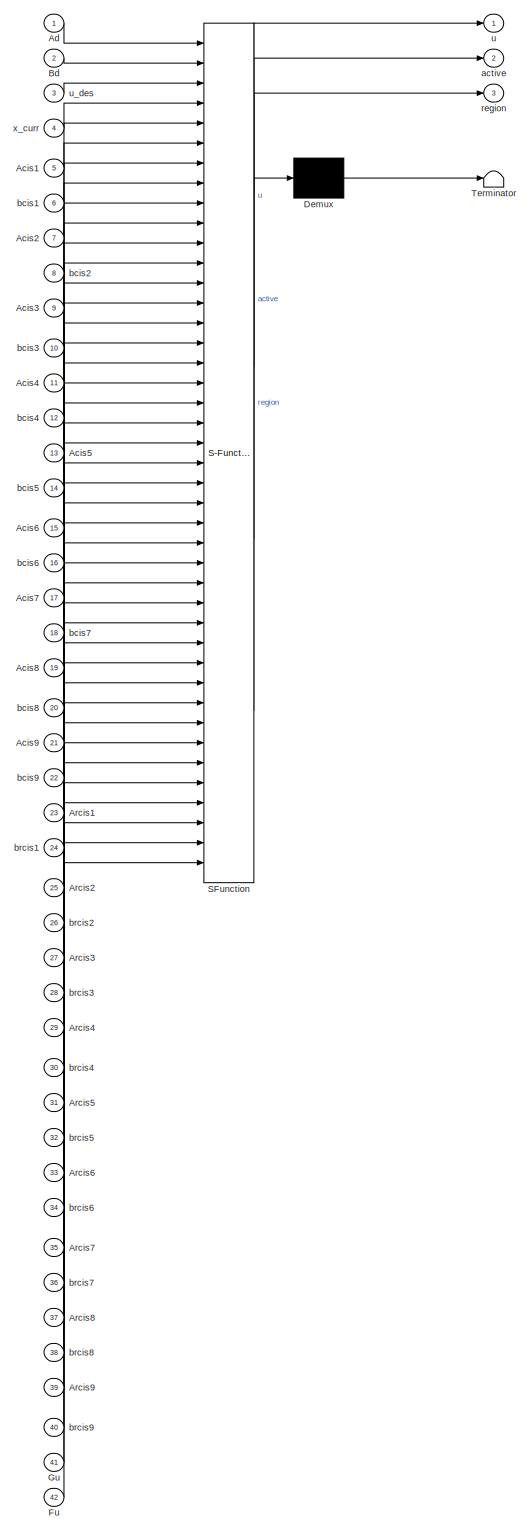
[diagram: Subsystem/MATLAB Function1 - part 1/1, most of the canvas]
BLOCK [SubSystem] Subsystem/MATLAB Function1
  ErrorFcn = Stateflow.Translate.translate
  PermitHierarchicalResolution = ExplicitOnly
  Ports = [42, 3]
  RequestExecContextInheritance = off
  SFBlockType = MATLAB Function
  TreatAsAtomicUnit = on
BLOCK [Demux] Subsystem/MATLAB Function1/ Demux 
  Outputs = 1
  Ports = [1, 1]
BLOCK [S-Function] Subsystem/MATLAB Function1/ SFunction 
  EnableBusSupport = on
  FunctionName = sf_sfun
  PortCounts = [42 4]
  Ports = [42, 4]
  SFcnIsStateOwnerBlock = off
  SFunctionDeploymentMode = off
  Tag = Stateflow S-Function 1
BLOCK [Terminator] Subsystem/MATLAB Function1/ Terminator 
BLOCK [Inport] Subsystem/MATLAB Function1/Acis1
  Port = 5
BLOCK [Inport] Subsystem/MATLAB Function1/Acis2
  Port = 7
BLOCK [Inport] Subsystem/MATLAB Function1/Acis3
  Port = 9
BLOCK [Inport] Subsystem/MATLAB Function1/Acis4
  Port = 11
BLOCK [Inport] Subsystem/MATLAB Function1/Acis5
  Port = 13
BLOCK [Inport] Subsystem/MATLAB Function1/Acis6
  Port = 15
BLOCK [Inport] Subsystem/MATLAB Function1/Acis7
  Port = 17
BLOCK [Inport] Subsystem/MATLAB Function1/Acis8
  Port = 19
BLOCK [Inport] Subsystem/MATLAB Function1/Acis9
  Port = 21
BLOCK [Inport] Subsystem/MATLAB Function1/Ad
BLOCK [Inport] Subsystem/MATLAB Function1/Arcis1
  Port = 23
BLOCK [Inport] Subsystem/MATLAB Function1/Arcis2
  Port = 25
BLOCK [Inport] Subsystem/MATLAB Function1/Arcis3
  Port = 27
BLOCK [Inport] Subsystem/MATLAB Function1/Arcis4
  Port = 29
BLOCK [Inport] Subsystem/MATLAB Function1/Arcis5
  Port = 31
BLOCK [Inport] Subsystem/MATLAB Function1/Arcis6
  Port = 33
BLOCK [Inport] Subsystem/MATLAB Function1/Arcis7
  Port = 35
BLOCK [Inport] Subsystem/MATLAB Function1/Arcis8
  Port = 37
BLOCK [Inport] Subsystem/MATLAB Function1/Arcis9
  Port = 39
BLOCK [Inport] Subsystem/MATLAB Function1/Bd
  Port = 2
BLOCK [Inport] Subsystem/MATLAB Function1/Fu
  Port = 42
BLOCK [Inport] Subsystem/MATLAB Function1/Gu
  Port = 41
BLOCK [Outport] Subsystem/MATLAB Function1/active
  Port = 2
BLOCK [Inport] Subsystem/MATLAB Function1/bcis1
  Port = 6
BLOCK [Inport] Subsystem/MATLAB Function1/bcis2
  Port = 8
BLOCK [Inport] Subsystem/MATLAB Function1/bcis3
  Port = 10
BLOCK [Inport] Subsystem/MATLAB Function1/bcis4
  Port = 12
BLOCK [Inport] Subsystem/MATLAB Function1/bcis5
  Port = 14
BLOCK [Inport] Subsystem/MATLAB Function1/bcis6
  Port = 16
BLOCK [Inport] Subsystem/MATLAB Function1/bcis7
  Port = 18
BLOCK [Inport] Subsystem/MATLAB Function1/bcis8
  Port = 20
BLOCK [Inport] Subsystem/MATLAB Function1/bcis9
  Port = 22
BLOCK [Inport] Subsystem/MATLAB Function1/brcis1
  Port = 24
BLOCK [Inport] Subsystem/MATLAB Function1/brcis2
  Port = 26
BLOCK [Inport] Subsystem/MATLAB Function1/brcis3
  Port = 28
BLOCK [Inport] Subsystem/MATLAB Function1/brcis4
  Port = 30
BLOCK [Inport] Subsystem/MATLAB Function1/brcis5
  Port = 32
BLOCK [Inport] Subsystem/MATLAB Function1/brcis6
  Port = 34
BLOCK [Inport] Subsystem/MATLAB Function1/brcis7
  Port = 36
BLOCK [Inport] Subsystem/MATLAB Function1/brcis8
  Port = 38
BLOCK [Inport] Subsystem/MATLAB Function1/brcis9
  Port = 40
BLOCK [Outport] Subsystem/MATLAB Function1/region
  Port = 3
BLOCK [Outport] Subsystem/MATLAB Function1/u
BLOCK [Inport] Subsystem/MATLAB Function1/u_des
  Port = 3
BLOCK [Inport] Subsystem/MATLAB Function1/x_curr
  Port = 4
BLOCK [Outport] Subsystem/active
  Port = 2
BLOCK [Outport] Subsystem/region
  Port = 3
BLOCK [Outport] Subsystem/u_corrected
BLOCK [Inport] Subsystem/u_nominal
BLOCK [Inport] Subsystem/x_curr
  Port = 2
BLOCK [SubSystem] Subsystem2
  Ports = [2, 3]
  RequestExecContextInheritance = off
BLOCK [Inport] Subsystem2/<q_wb>
  Port = 2
BLOCK [Outport] Subsystem2/Omega_b
  Port = 3
BLOCK [Outport] Subsystem2/Omega_w
  Port = 2
BLOCK [Reference] Subsystem2/Quaternion Inverse  REF=aerolibutil/Quaternion
Inverse
  Ports = [1, 1]
  SourceBlock = aerolibutil/Quaternion\nInverse
  SourceProductBaseCode = AE
  SourceType = Quaternion Inverse
BLOCK [Reference] Subsystem2/Quaternion Rotation1  REF=aerolibutil/Quaternion
Rotation
  Ports = [2, 1]
  SourceBlock = aerolibutil/Quaternion\nRotation
  SourceProductBaseCode = AE
  SourceType = Quaternion Rotation
BLOCK [SubSystem] Subsystem2/Subsystem1
  Ports = [2, 2]
  RequestExecContextInheritance = off
BLOCK [BusCreator] Subsystem2/Subsystem1/Bus Creator3
  DisplayOption = bar
  InheritFromInputs = on
  Inputs = 3
  Ports = [3, 1]
BLOCK [Constant] Subsystem2/Subsystem1/Constant
  Value = 0
BLOCK [Demux] Subsystem2/Subsystem1/Demux
  Outputs = 3
  Ports = [1, 3]
BLOCK [Product] Subsystem2/Subsystem1/Divide
  Inputs = */
  Ports = [2, 1]
BLOCK [Product] Subsystem2/Subsystem1/Divide1
  Inputs = */
  Ports = [2, 1]
BLOCK [Gain] Subsystem2/Subsystem1/Gain1
  Gain = 1/Mass
BLOCK [Gain] Subsystem2/Subsystem1/Gain2
  Gain = Mass
BLOCK [Gain] Subsystem2/Subsystem1/Gain4
  Gain = -1
BLOCK [Integrator] Subsystem2/Subsystem1/Integrator
  InitialCondition = Mass * G_acc
  LimitOutput = on
  LowerSaturationLimit = mdl_cnstr.Tmin
  Ports = [1, 1]
  UpperSaturationLimit = mdl_cnstr.Tmax
BLOCK [Outport] Subsystem2/Subsystem1/Omega
BLOCK [Reference] Subsystem2/Subsystem1/Quaternion Rotation  REF=aerolibutil/Quaternion
Rotation
  Ports = [2, 1]
  SourceBlock = aerolibutil/Quaternion\nRotation
  SourceProductBaseCode = AE
  SourceType = Quaternion Rotation
BLOCK [Outport] Subsystem2/Subsystem1/Thrust
  Port = 2
BLOCK [Inport] Subsystem2/Subsystem1/jerk_w
  Port = 2
BLOCK [Inport] Subsystem2/Subsystem1/q_bw
BLOCK [Outport] Subsystem2/Thrust
BLOCK [Inport] Subsystem2/jerk
BLOCK [Scope] SupervisorActive
  Floating = off
  NumInputPorts = 1
  Ports = [1]
  ScopeSpecificationString = Simulink.scopes.TimeScopeBlockCfg('CurrentConfiguration', extmgr.ConfigurationSet(extmgr.Configuration('Core','General UI',true),extmgr.Configuration('Core','Source UI',true),extmgr.Configuration('Sources','WiredSimulink',true,'DataLoggingVariableName','ScopeData4'),extmgr.Configuration('Visuals','Time Domain',true,'SerializedDisplays',{struct('MinYLimReal','0.9','MaxYLimReal','1.1','YLabelReal','...<+1415ch>
BLOCK [Terminator] Terminator
BLOCK [ToWorkspace] To Workspace
  FixptAsFi = on
  MaxDataPoints = inf
  Ports = [1]
  SampleTime = -1
  VariableName = X_sim
BLOCK [SubSystem] Trajectory_Gen
  Ports = [3, 4]
  RequestExecContextInheritance = off
BLOCK [Outport] Trajectory_Gen/A
  Port = 3
BLOCK [Sum] Trajectory_Gen/Add
  IconShape = rectangular
  Inputs = +-
  Ports = [2, 1]
BLOCK [Sum] Trajectory_Gen/Add1
  IconShape = rectangular
  Ports = [2, 1]
BLOCK [Reference] Trajectory_Gen/Compare To Zero  REF=simulink/Logic and Bit
Operations/Compare
To Zero
  Ports = [1, 1]
  SourceBlock = simulink/Logic and Bit\nOperations/Compare\nTo Zero
  SourceProductBaseCode = SL
  SourceType = Compare To Zero
BLOCK [Constant] Trajectory_Gen/Constant1
  Value = [0;0;0]
BLOCK [Constant] Trajectory_Gen/Constant2
  Value = [0;0;0]
BLOCK [Constant] Trajectory_Gen/Constant3
  Value = [0;0;0]
BLOCK [Delay] Trajectory_Gen/Delay
  DelayLength = 1
  InputPortMap = u0
  NameLocation = top
  Ports = [1, 1]
BLOCK [Inport] Trajectory_Gen/Duration
  Port = 3
BLOCK [Outport] Trajectory_Gen/J
  Port = 4
BLOCK [Mux] Trajectory_Gen/Mux
  DisplayOption = bar
  Inputs = 3
  Ports = [3, 1]
BLOCK [Mux] Trajectory_Gen/Mux1
  DisplayOption = bar
  Inputs = 3
  Ports = [3, 1]
BLOCK [Mux] Trajectory_Gen/Mux2
  DisplayOption = bar
  Inputs = 3
  Ports = [3, 1]
BLOCK [Mux] Trajectory_Gen/Mux3
  DisplayOption = bar
  Inputs = 3
  Ports = [3, 1]
BLOCK [Inport] Trajectory_Gen/Offset
  Port = 2
BLOCK [Outport] Trajectory_Gen/P
BLOCK [Polyval] Trajectory_Gen/Polynomial
  Coefs = flip(coeff_x)
BLOCK [Polyval] Trajectory_Gen/Polynomial1
  Coefs = flip(coeff_y)
BLOCK [Polyval] Trajectory_Gen/Polynomial10
  Coefs = flip(coeff_jy)
BLOCK [Polyval] Trajectory_Gen/Polynomial11
  Coefs = flip(coeff_jz)
BLOCK [Polyval] Trajectory_Gen/Polynomial2
  Coefs = flip(coeff_z)
BLOCK [Polyval] Trajectory_Gen/Polynomial3
  Coefs = flip(coeff_vx)
BLOCK [Polyval] Trajectory_Gen/Polynomial4
  Coefs = flip(coeff_vy)
BLOCK [Polyval] Trajectory_Gen/Polynomial5
  Coefs = flip(coeff_vz)
BLOCK [Polyval] Trajectory_Gen/Polynomial6
  Coefs = flip(coeff_ax)
BLOCK [Polyval] Trajectory_Gen/Polynomial7
  Coefs = flip(coeff_ay)
BLOCK [Polyval] Trajectory_Gen/Polynomial8
  Coefs = flip(coeff_az)
BLOCK [Polyval] Trajectory_Gen/Polynomial9
  Coefs = flip(coeff_jx)
BLOCK [Switch] Trajectory_Gen/Switch
  Criteria = u2 > Threshold
  InputSameDT = off
  SaturateOnIntegerOverflow = off
BLOCK [Switch] Trajectory_Gen/Switch1
  Criteria = u2 > Threshold
  InputSameDT = off
  SaturateOnIntegerOverflow = off
BLOCK [Switch] Trajectory_Gen/Switch2
  Criteria = u2 > Threshold
  InputSameDT = off
  SaturateOnIntegerOverflow = off
BLOCK [Switch] Trajectory_Gen/Switch3
  Criteria = u2 > Threshold
  InputSameDT = off
  SaturateOnIntegerOverflow = off
BLOCK [Outport] Trajectory_Gen/V
  Port = 2
BLOCK [Inport] Trajectory_Gen/t
BLOCK [InportShadow] Trajectory_Gen/t1
BLOCK [Scope] Velocity
  Floating = off
  NumInputPorts = 3
  Ports = [3]
  ScopeSpecificationString = Simulink.scopes.TimeScopeBlockCfg('CurrentConfiguration', extmgr.ConfigurationSet(extmgr.Configuration('Core','General UI',true),extmgr.Configuration('Core','Source UI',true),extmgr.Configuration('Sources','WiredSimulink',true,'DataLoggingVariableName','ScopeData1'),extmgr.Configuration('Visuals','Time Domain',true,'SerializedDisplays',{struct('MinYLimReal','-0.35117','MaxYLimReal','0.53891','YLab...<+3495ch>
BLOCK [Scope] Velocity1
  Floating = off
  NumInputPorts = 1
  Ports = [1]
  ScopeSpecificationString = Simulink.scopes.TimeScopeBlockCfg('CurrentConfiguration', extmgr.ConfigurationSet(extmgr.Configuration('Core','General UI',true),extmgr.Configuration('Core','Source UI',true),extmgr.Configuration('Sources','WiredSimulink',true,'DataLoggingVariableName','ScopeData4'),extmgr.Configuration('Visuals','Time Domain',true,'SerializedDisplays',{struct('MinYLimReal','-1.81917','MaxYLimReal','1.31324','YLab...<+1477ch>
ANNOTATION (root): FEEDBACK CONTROLLER
ANNOTATION (root): IDEAL MODEL
ANNOTATION (root): INTERNAL CONTROLLER
ANNOTATION (root): JERK TO OMEGA/THRUST
ANNOTATION (root): MOTORS
ANNOTATION (root): Plots
ANNOTATION (root): RIGID-BODY Dynamics
ANNOTATION (root): RIGID-BODY MODEL Kinematics
ANNOTATION (root): SUPERVISOR
ANNOTATION (root): TRAJECTORY GENERATOR
ANNOTATION Dynamics: The integration of the linear motion is done in Inertial frame
ANNOTATION Dynamics: The integration of the rotative motion is done in body frame. Anyway, the output quaternion is the one that maps local quantities into global.
ANNOTATION Dynamics: The thurst is alligned with the Zb axis of the vehicle
ANNOTATION Dynamics/Linear Motion Drag Model1: Now the quadratic drag is computed as drag2 = n * norm(v) ^ 2, where n is the versor of the speed and norm(v) is the module.
ANNOTATION Dynamics/Linear Motion Drag Model1/Subsystem: Output = n * norm(v) ^ 2
ANNOTATION Motor Model: Dynamics of the actuators
ANNOTATION Motor Model/Actuators1: Introduce motor dynamics
ANNOTATION Motor Model/Actuators1: Model for the torque generated by the drag.
ANNOTATION Motor Model/Actuators1: Map the Motor command into a Thrust, using the identified model. f = polynomial(cmd)
ANNOTATION MotorDriver_Interface: thrust = clamp(ctrl_cmd(1), 0, 65535); rpy = clamp(ctrl_cmd(2:4), -32000, 32000); roll = rpy(1); pitch = rpy(2); yaw = rpy(3); r = roll / 2.0; p = pitch / 2.0; m1 = clamp(thrust - r - p + yaw, 0, 65535); m2 = clamp(thrust - r + p - yaw, 0, 65535); m3 = clamp(thrust + r + p + yaw, 0, 65535); m4 = clamp(thrust + r - p - yaw, 0, 65535);
ANNOTATION RigidBody_Dynamics: The integration of the linear motion is done in Inertial frame
ANNOTATION RigidBody_Dynamics: The integration of the rotative motion is done in body frame. Anyway, the output quaternion is the one that maps local quantities into global.
ANNOTATION RigidBody_Dynamics: The thurst is alligned with the Zb axis of the vehicle
ANNOTATION RigidBody_Dynamics/Linear Motion Drag Model1: Now the quadratic drag is computed as drag2 = n * norm(v) ^ 2, where n is the versor of the speed and norm(v) is the module.
ANNOTATION RigidBody_Dynamics/Linear Motion Drag Model1/Subsystem: Output = n * norm(v) ^ 2
NET Bus Creator4:1 -> Goto6:1, Manual Switch1:1
NET Bus Creator6:1 -> Bus Selector4:1, FlatOutput Feedback Controller:2, Goto1:1
LINE Bus Creator:1 -> Goto8:1
LINE Bus Selector10:1 -> Bus Selector9:1
LINE Bus Selector11:1 -> Bus Selector2:1
LINE Bus Selector12:1 -> Bus Selector6:1
LINE Bus Selector1:1 -> Demux3:1
LINE Bus Selector1:2 -> Demux7:1
LINE Bus Selector1:3 -> Demux9:1
LINE Bus Selector2:1 -> Gain:1
LINE Bus Selector3:1 -> Demux2:1
LINE Bus Selector3:2 -> Demux8:1
LINE Bus Selector3:3 -> Jerk:1
LINE Bus Selector3:4 -> Demux6:1
LINE Bus Selector4:1 -> FlatOutput Feedback Controller:3
LINE Bus Selector5:1 -> Error:1
LINE Bus Selector5:2 -> Error:2
LINE Bus Selector5:3 -> Error:3
LINE Bus Selector6:1 -> Demux5:1
LINE Bus Selector6:2 -> Mux12:2
LINE Bus Selector6:3 -> Mux8:2
LINE Bus Selector7:1 -> Demux4:1
LINE Bus Selector7:2 -> Mux12:1
LINE Bus Selector7:3 -> Mux8:1
LINE Bus Selector8:1 -> Position2:1
LINE Bus Selector8:2 -> Position2:2
LINE Bus Selector8:3 -> Position2:3
LINE Bus Selector9:1 -> Subsystem2:2
LINE Bus Selector:1 -> Subsystem:2
LINE Clock:1 -> Trajectory_Gen:1
LINE Constant14:1 -> Trajectory_Gen:3
LINE Constant15:1 -> Trajectory_Gen:2
LINE Demux1:1 -> Mux:1
LINE Demux1:2 -> Mux1:1
LINE Demux1:3 -> Mux2:1
LINE Demux2:1 -> Mux3:1
LINE Demux2:2 -> Mux5:1
LINE Demux2:3 -> Mux6:1
LINE Demux3:1 -> Mux3:2
LINE Demux3:2 -> Mux5:2
LINE Demux3:3 -> Mux6:2
LINE Demux4:1 -> Mux7:1
LINE Demux4:2 -> Mux9:1
LINE Demux4:3 -> Mux10:1
LINE Demux5:1 -> Mux7:2
LINE Demux5:2 -> Mux9:2
LINE Demux5:3 -> Mux10:2
LINE Demux6:1 -> Mux4:1
LINE Demux6:2 -> Mux11:1
LINE Demux6:3 -> Mux13:1
LINE Demux7:1 -> Mux4:2
LINE Demux7:2 -> Mux11:2
LINE Demux7:3 -> Mux13:2
LINE Demux8:1 -> Mux16:1
LINE Demux8:2 -> Mux14:1
LINE Demux8:3 -> Mux15:1
LINE Demux9:1 -> Mux16:2
LINE Demux9:2 -> Mux14:2
LINE Demux9:3 -> Mux15:2
LINE Demux:1 -> Mux:2
LINE Demux:2 -> Mux1:2
LINE Demux:3 -> Mux2:2
LINE Dynamics/Angular Motion/Ang_input:1 -> Dynamics/Angular Motion/Omega2QuatDot:2
NET Dynamics/Angular Motion/MATLAB Function1:1 -> Dynamics/Angular Motion/Omega2QuatDot:1, Dynamics/Angular Motion/Quaternion:1, Dynamics/Angular Motion/Quaternions to Rotation Angles:1
LINE Dynamics/Angular Motion/Omega2QuatDot/AngularVelocity:1 -> Dynamics/Angular Motion/Omega2QuatDot/MATLAB Function:1
LINE Dynamics/Angular Motion/Omega2QuatDot/MATLAB Function:1 -> Dynamics/Angular Motion/Omega2QuatDot/q_dot:1
LINE Dynamics/Angular Motion/Omega2QuatDot/q:1 -> Dynamics/Angular Motion/Omega2QuatDot/MATLAB Function:2
LINE Dynamics/Angular Motion/Omega2QuatDot:1 -> Dynamics/Angular Motion/q_dot2q:1
LINE Dynamics/Angular Motion/Quaternions to Rotation Angles:1 -> Dynamics/Angular Motion/RPY:1
LINE Dynamics/Angular Motion/q_dot2q:1 -> Dynamics/Angular Motion/MATLAB Function1:1
NET Dynamics/Angular Motion:1 -> Dynamics/Bus Creator5:1, Dynamics/MATLAB Function:2
LINE Dynamics/Angular Motion:2 -> Dynamics/Bus Creator5:2
LINE Dynamics/Angvel_ref:1 -> Dynamics/Angular Motion:1
LINE Dynamics/Bus Creator4:1 -> Dynamics/Translational_State:1
LINE Dynamics/Bus Creator5:1 -> Dynamics/Orientation_State:1
LINE Dynamics/Gain:1 -> Dynamics/MATLAB Function:1
LINE Dynamics/Linear Motion Drag Model1/Add:1 -> Dynamics/Linear Motion Drag Model1/Drag:1
LINE Dynamics/Linear Motion Drag Model1/Gain1:1 -> Dynamics/Linear Motion Drag Model1/Add:2
LINE Dynamics/Linear Motion Drag Model1/Gain:1 -> Dynamics/Linear Motion Drag Model1/Add:1
LINE Dynamics/Linear Motion Drag Model1/K linear:1 -> Dynamics/Linear Motion Drag Model1/Gain:1
LINE Dynamics/Linear Motion Drag Model1/K quadratic:1 -> Dynamics/Linear Motion Drag Model1/Gain1:1
LINE Dynamics/Linear Motion Drag Model1/Subsystem/Dot Product:1 -> Dynamics/Linear Motion Drag Model1/Subsystem/Product:1
LINE Dynamics/Linear Motion Drag Model1/Subsystem/Product:1 -> Dynamics/Linear Motion Drag Model1/Subsystem/n_norm2:1
LINE Dynamics/Linear Motion Drag Model1/Subsystem/Versor/Normalize/Compare To Zero:1 -> Dynamics/Linear Motion Drag Model1/Subsystem/Versor/Normalize/Switch:2
LINE Dynamics/Linear Motion Drag Model1/Subsystem/Versor/Normalize/Constant:1 -> Dynamics/Linear Motion Drag Model1/Subsystem/Versor/Normalize/Switch:3
NET Dynamics/Linear Motion Drag Model1/Subsystem/Versor/Normalize/Dot Product:1 -> Dynamics/Linear Motion Drag Model1/Subsystem/Versor/Normalize/Compare To Zero:1, Dynamics/Linear Motion Drag Model1/Subsystem/Versor/Normalize/Switch:1
LINE Dynamics/Linear Motion Drag Model1/Subsystem/Versor/Normalize/Reciprocal Sqrt:1 -> Dynamics/Linear Motion Drag Model1/Subsystem/Versor/Normalize/1//norm(v):1
LINE Dynamics/Linear Motion Drag Model1/Subsystem/Versor/Normalize/Switch:1 -> Dynamics/Linear Motion Drag Model1/Subsystem/Versor/Normalize/Reciprocal Sqrt:1
NET Dynamics/Linear Motion Drag Model1/Subsystem/Versor/Normalize/v:1 -> Dynamics/Linear Motion Drag Model1/Subsystem/Versor/Normalize/Dot Product:1, Dynamics/Linear Motion Drag Model1/Subsystem/Versor/Normalize/Dot Product:2
LINE Dynamics/Linear Motion Drag Model1/Subsystem/Versor/Normalize:1 -> Dynamics/Linear Motion Drag Model1/Subsystem/Versor/Product:1
LINE Dynamics/Linear Motion Drag Model1/Subsystem/Versor/Product:1 -> Dynamics/Linear Motion Drag Model1/Subsystem/Versor/n:1
NET Dynamics/Linear Motion Drag Model1/Subsystem/Versor/v:1 -> Dynamics/Linear Motion Drag Model1/Subsystem/Versor/Normalize:1, Dynamics/Linear Motion Drag Model1/Subsystem/Versor/Product:2
LINE Dynamics/Linear Motion Drag Model1/Subsystem/Versor:1 -> Dynamics/Linear Motion Drag Model1/Subsystem/Product:2
NET Dynamics/Linear Motion Drag Model1/Subsystem/v:1 -> Dynamics/Linear Motion Drag Model1/Subsystem/Dot Product:1, Dynamics/Linear Motion Drag Model1/Subsystem/Dot Product:2, Dynamics/Linear Motion Drag Model1/Subsystem/Versor:1
LINE Dynamics/Linear Motion Drag Model1/Subsystem:1 -> Dynamics/Linear Motion Drag Model1/K quadratic:1
NET Dynamics/Linear Motion Drag Model1/Velocity:1 -> Dynamics/Linear Motion Drag Model1/K linear:1, Dynamics/Linear Motion Drag Model1/Subsystem:1
LINE Dynamics/Linear Motion Drag Model1:1 -> Dynamics/Linear Motion:2
NET Dynamics/Linear Motion/Add:1 -> Dynamics/Linear Motion/Integrator:1, Dynamics/Linear Motion/w_Xdd:1
LINE Dynamics/Linear Motion/Constant:1 -> Dynamics/Linear Motion/Product:2
LINE Dynamics/Linear Motion/Gain1:1 -> Dynamics/Linear Motion/Add:1
LINE Dynamics/Linear Motion/Gain:1 -> Dynamics/Linear Motion/Add:2
LINE Dynamics/Linear Motion/Integrator2:1 -> Dynamics/Linear Motion/w_X:1
NET Dynamics/Linear Motion/Integrator:1 -> Dynamics/Linear Motion/Integrator2:1, Dynamics/Linear Motion/w_Xd:1
LINE Dynamics/Linear Motion/Product:1 -> Dynamics/Linear Motion/Gain:1
LINE Dynamics/Linear Motion/Zw:1 -> Dynamics/Linear Motion/Product:1
LINE Dynamics/Linear Motion/w_Ext_F:1 -> Dynamics/Linear Motion/Add:3
LINE Dynamics/Linear Motion/w_Thrust:1 -> Dynamics/Linear Motion/Gain1:1
LINE Dynamics/Linear Motion:1 -> Dynamics/Bus Creator4:1
NET Dynamics/Linear Motion:2 -> Dynamics/Bus Creator4:2, Dynamics/Linear Motion Drag Model1:1
LINE Dynamics/Linear Motion:3 -> Dynamics/Bus Creator4:3
LINE Dynamics/MATLAB Function:1 -> Dynamics/Linear Motion:1
LINE Dynamics/b_Thrust:1 -> Dynamics/Gain:1
LINE FlatOutput Feedback Controller/Jerk_FF:1 -> FlatOutput Feedback Controller/Subsystem:3
LINE FlatOutput Feedback Controller/Ref:1 -> FlatOutput Feedback Controller/Subsystem:2
NET FlatOutput Feedback Controller/Subsystem/Add2:1 -> FlatOutput Feedback Controller/Subsystem/Bus Creator:1, FlatOutput Feedback Controller/Subsystem/Gain1:1
NET FlatOutput Feedback Controller/Subsystem/Add3:1 -> FlatOutput Feedback Controller/Subsystem/Bus Creator:2, FlatOutput Feedback Controller/Subsystem/Gain2:1
NET FlatOutput Feedback Controller/Subsystem/Add4:1 -> FlatOutput Feedback Controller/Subsystem/Bus Creator:3, FlatOutput Feedback Controller/Subsystem/Gain3:1
LINE FlatOutput Feedback Controller/Subsystem/Add5:1 -> FlatOutput Feedback Controller/Subsystem/Add6:1
LINE FlatOutput Feedback Controller/Subsystem/Add6:1 -> FlatOutput Feedback Controller/Subsystem/U_jerk:1
LINE FlatOutput Feedback Controller/Subsystem/Bus Creator1:1 -> FlatOutput Feedback Controller/Subsystem/ControlComponents:1
LINE FlatOutput Feedback Controller/Subsystem/Bus Creator:1 -> FlatOutput Feedback Controller/Subsystem/Tracking_Err:1
LINE FlatOutput Feedback Controller/Subsystem/Bus Selector1:1 -> FlatOutput Feedback Controller/Subsystem/Add2:2
LINE FlatOutput Feedback Controller/Subsystem/Bus Selector1:2 -> FlatOutput Feedback Controller/Subsystem/Add3:2
LINE FlatOutput Feedback Controller/Subsystem/Bus Selector1:3 -> FlatOutput Feedback Controller/Subsystem/Add4:2
LINE FlatOutput Feedback Controller/Subsystem/Bus Selector8:1 -> FlatOutput Feedback Controller/Subsystem/Add2:1
LINE FlatOutput Feedback Controller/Subsystem/Bus Selector8:2 -> FlatOutput Feedback Controller/Subsystem/Add3:1
LINE FlatOutput Feedback Controller/Subsystem/Bus Selector8:3 -> FlatOutput Feedback Controller/Subsystem/Add4:1
NET FlatOutput Feedback Controller/Subsystem/Gain1:1 -> FlatOutput Feedback Controller/Subsystem/Add5:1, FlatOutput Feedback Controller/Subsystem/Bus Creator1:1
NET FlatOutput Feedback Controller/Subsystem/Gain2:1 -> FlatOutput Feedback Controller/Subsystem/Add5:2, FlatOutput Feedback Controller/Subsystem/Bus Creator1:2
NET FlatOutput Feedback Controller/Subsystem/Gain3:1 -> FlatOutput Feedback Controller/Subsystem/Add5:3, FlatOutput Feedback Controller/Subsystem/Bus Creator1:3
LINE FlatOutput Feedback Controller/Subsystem/U_ff:1 -> FlatOutput Feedback Controller/Subsystem/Add6:2
LINE FlatOutput Feedback Controller/Subsystem/X:1 -> FlatOutput Feedback Controller/Subsystem/Bus Selector8:1
LINE FlatOutput Feedback Controller/Subsystem/X_ref:1 -> FlatOutput Feedback Controller/Subsystem/Bus Selector1:1
LINE FlatOutput Feedback Controller/Subsystem:1 -> FlatOutput Feedback Controller/Jerk_re_wf:1
LINE FlatOutput Feedback Controller/Subsystem:2 -> FlatOutput Feedback Controller/Tracking_Err:1
LINE FlatOutput Feedback Controller/Subsystem:3 -> FlatOutput Feedback Controller/ControlComponents:1
LINE FlatOutput Feedback Controller/Translational_State:1 -> FlatOutput Feedback Controller/Subsystem:1
NET FlatOutput Feedback Controller:1 -> Goto3:1, Manual Switch:1, Subsystem:1
LINE FlatOutput Feedback Controller:2 -> Goto5:1
LINE FlatOutput Feedback Controller:3 -> Goto2:1
LINE From10:1 -> Bus Selector11:1
LINE From11:1 -> Bus Selector12:1
LINE From12:1 -> InternalController:3
LINE From1:1 -> Bus Selector:1
LINE From20:1 -> FlatOutput Feedback Controller:1
LINE From2:1 -> Bus Selector5:1
LINE From3:1 -> Demux1:1
LINE From4:1 -> Demux:1
LINE From5:1 -> Bus Selector1:1
LINE From6:1 -> Bus Selector7:1
LINE From7:1 -> Bus Selector8:1
LINE From8:1 -> Bus Selector10:1
LINE From:1 -> Bus Selector3:1
LINE Gain:1 -> Orientation:1
LINE InternalController/Add:1 -> InternalController/Gain:1
LINE InternalController/Bus Selector:1 -> InternalController/Add:1
LINE InternalController/Bus Selector:2 -> InternalController/Quaternion Inverse:1
LINE InternalController/Gain:1 -> InternalController/b_Torques:1
LINE InternalController/Quaternion Inverse:1 -> InternalController/Quaternion Rotation:1
LINE InternalController/Quaternion Rotation:1 -> InternalController/Add:2
LINE InternalController/RefOmega_w:1 -> InternalController/Quaternion Rotation:2
LINE InternalController/State_w:1 -> InternalController/Bus Selector:1
LINE InternalController/Thrust:1 -> InternalController/b_Thrust:1
LINE InternalController:1 -> RigidBody_Dynamics:1
LINE InternalController:2 -> RigidBody_Dynamics:2
NET Linear Motion/Add:1 -> Linear Motion/Integrator:1, Linear Motion/w_Xdd:1
LINE Linear Motion/Constant:1 -> Linear Motion/Product:2
LINE Linear Motion/Gain:1 -> Linear Motion/Add:2
LINE Linear Motion/Integrator1:1 -> Linear Motion/Add:1
LINE Linear Motion/Integrator2:1 -> Linear Motion/w_X:1
NET Linear Motion/Integrator:1 -> Linear Motion/Integrator2:1, Linear Motion/w_Xd:1
LINE Linear Motion/Product:1 -> Linear Motion/Gain:1
LINE Linear Motion/Zw:1 -> Linear Motion/Product:1
LINE Linear Motion/jerk:1 -> Linear Motion/Integrator1:1
LINE Linear Motion:1 -> Bus Creator4:1
LINE Linear Motion:2 -> Bus Creator4:2
LINE Linear Motion:3 -> Bus Creator4:3
NET Manual Switch1:1 -> Goto:1, To Workspace:1
NET Manual Switch:1 -> Linear Motion:1, Subsystem2:1
LINE Motor Model/Actuators1/Command2Force/Polynomial:1 -> Motor Model/Actuators1/Command2Force/Saturation:1
LINE Motor Model/Actuators1/Command2Force/Saturation:1 -> Motor Model/Actuators1/Command2Force/force:1
LINE Motor Model/Actuators1/Command2Force/cmd:1 -> Motor Model/Actuators1/Command2Force/Polynomial:1
LINE Motor Model/Actuators1/Command2Force1/Polynomial:1 -> Motor Model/Actuators1/Command2Force1/Saturation:1
LINE Motor Model/Actuators1/Command2Force1/Saturation:1 -> Motor Model/Actuators1/Command2Force1/force:1
LINE Motor Model/Actuators1/Command2Force1/cmd:1 -> Motor Model/Actuators1/Command2Force1/Polynomial:1
LINE Motor Model/Actuators1/Command2Force1:1 -> Motor Model/Actuators1/Discrete Transfer Fcn1:1
LINE Motor Model/Actuators1/Command2Force2/Polynomial:1 -> Motor Model/Actuators1/Command2Force2/Saturation:1
LINE Motor Model/Actuators1/Command2Force2/Saturation:1 -> Motor Model/Actuators1/Command2Force2/force:1
LINE Motor Model/Actuators1/Command2Force2/cmd:1 -> Motor Model/Actuators1/Command2Force2/Polynomial:1
LINE Motor Model/Actuators1/Command2Force2:1 -> Motor Model/Actuators1/Discrete Transfer Fcn2:1
LINE Motor Model/Actuators1/Command2Force3/Polynomial:1 -> Motor Model/Actuators1/Command2Force3/Saturation:1
LINE Motor Model/Actuators1/Command2Force3/Saturation:1 -> Motor Model/Actuators1/Command2Force3/force:1
LINE Motor Model/Actuators1/Command2Force3/cmd:1 -> Motor Model/Actuators1/Command2Force3/Polynomial:1
LINE Motor Model/Actuators1/Command2Force3:1 -> Motor Model/Actuators1/Discrete Transfer Fcn3:1
LINE Motor Model/Actuators1/Command2Force:1 -> Motor Model/Actuators1/Discrete Transfer Fcn:1
NET Motor Model/Actuators1/Discrete Transfer Fcn1:1 -> Motor Model/Actuators1/Mux2:2, Motor Model/Actuators1/force2torque1:1
NET Motor Model/Actuators1/Discrete Transfer Fcn2:1 -> Motor Model/Actuators1/Mux2:3, Motor Model/Actuators1/force2torque2:1
NET Motor Model/Actuators1/Discrete Transfer Fcn3:1 -> Motor Model/Actuators1/Mux2:4, Motor Model/Actuators1/force2torque3:1
NET Motor Model/Actuators1/Discrete Transfer Fcn:1 -> Motor Model/Actuators1/Mux2:1, Motor Model/Actuators1/force2torque:1
LINE Motor Model/Actuators1/Mux1:1 -> Motor Model/Actuators1/Reshape1:1
LINE Motor Model/Actuators1/Mux2:1 -> Motor Model/Actuators1/Reshape:1
LINE Motor Model/Actuators1/Reshape1:1 -> Motor Model/Actuators1/Torques:1
LINE Motor Model/Actuators1/Reshape:1 -> Motor Model/Actuators1/Thrusts:1
LINE Motor Model/Actuators1/force2torque/Constant:1 -> Motor Model/Actuators1/force2torque/Product:1
LINE Motor Model/Actuators1/force2torque/Product:1 -> Motor Model/Actuators1/force2torque/torque:1
LINE Motor Model/Actuators1/force2torque/force:1 -> Motor Model/Actuators1/force2torque/Product:2
LINE Motor Model/Actuators1/force2torque1/Constant:1 -> Motor Model/Actuators1/force2torque1/Product:1
LINE Motor Model/Actuators1/force2torque1/Product:1 -> Motor Model/Actuators1/force2torque1/torque:1
LINE Motor Model/Actuators1/force2torque1/force:1 -> Motor Model/Actuators1/force2torque1/Product:2
LINE Motor Model/Actuators1/force2torque1:1 -> Motor Model/Actuators1/Mux1:2
LINE Motor Model/Actuators1/force2torque2/Constant:1 -> Motor Model/Actuators1/force2torque2/Product:1
LINE Motor Model/Actuators1/force2torque2/Product:1 -> Motor Model/Actuators1/force2torque2/torque:1
LINE Motor Model/Actuators1/force2torque2/force:1 -> Motor Model/Actuators1/force2torque2/Product:2
LINE Motor Model/Actuators1/force2torque2:1 -> Motor Model/Actuators1/Mux1:3
LINE Motor Model/Actuators1/force2torque3/Constant:1 -> Motor Model/Actuators1/force2torque3/Product:1
LINE Motor Model/Actuators1/force2torque3/Product:1 -> Motor Model/Actuators1/force2torque3/torque:1
LINE Motor Model/Actuators1/force2torque3/force:1 -> Motor Model/Actuators1/force2torque3/Product:2
LINE Motor Model/Actuators1/force2torque3:1 -> Motor Model/Actuators1/Mux1:4
LINE Motor Model/Actuators1/force2torque:1 -> Motor Model/Actuators1/Mux1:1
LINE Motor Model/Actuators1/m1:1 -> Motor Model/Actuators1/Command2Force:1
LINE Motor Model/Actuators1/m2:1 -> Motor Model/Actuators1/Command2Force1:1
LINE Motor Model/Actuators1/m3:1 -> Motor Model/Actuators1/Command2Force2:1
LINE Motor Model/Actuators1/m4:1 -> Motor Model/Actuators1/Command2Force3:1
LINE Motor Model/Actuators1:1 -> Motor Model/Thrusts:1
LINE Motor Model/Actuators1:2 -> Motor Model/Torques:1
LINE Motor Model/Demux6:1 -> Motor Model/Saturation:1
LINE Motor Model/Demux6:2 -> Motor Model/Saturation1:1
LINE Motor Model/Demux6:3 -> Motor Model/Saturation2:1
LINE Motor Model/Demux6:4 -> Motor Model/Saturation3:1
LINE Motor Model/Motors:1 -> Motor Model/Demux6:1
LINE Motor Model/Saturation1:1 -> Motor Model/Actuators1:2
LINE Motor Model/Saturation2:1 -> Motor Model/Actuators1:3
LINE Motor Model/Saturation3:1 -> Motor Model/Actuators1:4
LINE Motor Model/Saturation:1 -> Motor Model/Actuators1:1
LINE MotorDriver_Interface/MATLAB Function1:1 -> MotorDriver_Interface/Saturation:1
LINE MotorDriver_Interface/RPY:1 -> MotorDriver_Interface/MATLAB Function1:2
LINE MotorDriver_Interface/Saturation:1 -> MotorDriver_Interface/act_cmd:1
LINE MotorDriver_Interface/Thrust:1 -> MotorDriver_Interface/MATLAB Function1:1
LINE MotorDriver_Interface:1 -> Motor Model:1
LINE Mux10:1 -> Position1:3
LINE Mux11:1 -> Velocity:2
LINE Mux12:1 -> Velocity1:1
LINE Mux13:1 -> Velocity:3
LINE Mux14:1 -> Acceleration:2
LINE Mux15:1 -> Acceleration:3
LINE Mux16:1 -> Acceleration:1
LINE Mux1:1 -> Control_Jerk:2
LINE Mux2:1 -> Control_Jerk:3
LINE Mux3:1 -> Position:1
LINE Mux4:1 -> Velocity:1
LINE Mux5:1 -> Position:2
LINE Mux6:1 -> Position:3
LINE Mux7:1 -> Position1:1
LINE Mux8:1 -> Acceleration1:1
LINE Mux9:1 -> Position1:2
LINE Mux:1 -> Control_Jerk:1
LINE RigidBody_Dynamics/Angular Motion Drag Model1/Add:1 -> RigidBody_Dynamics/Angular Motion Drag Model1/Drag:1
LINE RigidBody_Dynamics/Angular Motion Drag Model1/Constant:1 -> RigidBody_Dynamics/Angular Motion Drag Model1/Add:2
LINE RigidBody_Dynamics/Angular Motion Drag Model1/Gain:1 -> RigidBody_Dynamics/Angular Motion Drag Model1/Add:1
LINE RigidBody_Dynamics/Angular Motion Drag Model1/K linear:1 -> RigidBody_Dynamics/Angular Motion Drag Model1/Gain:1
LINE RigidBody_Dynamics/Angular Motion Drag Model1/Velocity:1 -> RigidBody_Dynamics/Angular Motion Drag Model1/K linear:1
LINE RigidBody_Dynamics/Angular Motion Drag Model1:1 -> RigidBody_Dynamics/Angular Motion:2
LINE RigidBody_Dynamics/Angular Motion/- w X Iw:1 -> RigidBody_Dynamics/Angular Motion/Add:2
NET RigidBody_Dynamics/Angular Motion/Acc2Vel:1 -> RigidBody_Dynamics/Angular Motion/- w X Iw:2, RigidBody_Dynamics/Angular Motion/AngularVelocity:1, RigidBody_Dynamics/Angular Motion/I w:2, RigidBody_Dynamics/Angular Motion/Omega2QuatDot:2
LINE RigidBody_Dynamics/Angular Motion/Add:1 -> RigidBody_Dynamics/Angular Motion/inv(I) * t:2
LINE RigidBody_Dynamics/Angular Motion/Constant1:1 -> RigidBody_Dynamics/Angular Motion/I w:1
LINE RigidBody_Dynamics/Angular Motion/Constant2:1 -> RigidBody_Dynamics/Angular Motion/inv(I) * t:1
LINE RigidBody_Dynamics/Angular Motion/Ext_T:1 -> RigidBody_Dynamics/Angular Motion/Add:3
LINE RigidBody_Dynamics/Angular Motion/I w:1 -> RigidBody_Dynamics/Angular Motion/- w X Iw:1
NET RigidBody_Dynamics/Angular Motion/MATLAB Function1:1 -> RigidBody_Dynamics/Angular Motion/Omega2QuatDot:1, RigidBody_Dynamics/Angular Motion/Quaternion:1, RigidBody_Dynamics/Angular Motion/Quaternions to Rotation Angles:1
LINE RigidBody_Dynamics/Angular Motion/Omega2QuatDot/AngularVelocity:1 -> RigidBody_Dynamics/Angular Motion/Omega2QuatDot/MATLAB Function:1
LINE RigidBody_Dynamics/Angular Motion/Omega2QuatDot/MATLAB Function:1 -> RigidBody_Dynamics/Angular Motion/Omega2QuatDot/q_dot:1
LINE RigidBody_Dynamics/Angular Motion/Omega2QuatDot/q:1 -> RigidBody_Dynamics/Angular Motion/Omega2QuatDot/MATLAB Function:2
LINE RigidBody_Dynamics/Angular Motion/Omega2QuatDot:1 -> RigidBody_Dynamics/Angular Motion/q_dot2q:1
LINE RigidBody_Dynamics/Angular Motion/Quaternions to Rotation Angles:1 -> RigidBody_Dynamics/Angular Motion/RPY:1
LINE RigidBody_Dynamics/Angular Motion/Torques:1 -> RigidBody_Dynamics/Angular Motion/Add:1
NET RigidBody_Dynamics/Angular Motion/inv(I) * t:1 -> RigidBody_Dynamics/Angular Motion/Acc2Vel:1, RigidBody_Dynamics/Angular Motion/AngularAcceleration:1
LINE RigidBody_Dynamics/Angular Motion/q_dot2q:1 -> RigidBody_Dynamics/Angular Motion/MATLAB Function1:1
NET RigidBody_Dynamics/Angular Motion:1 -> RigidBody_Dynamics/Bus Creator5:1, RigidBody_Dynamics/MATLAB Function:2
NET RigidBody_Dynamics/Angular Motion:2 -> RigidBody_Dynamics/Angular Motion Drag Model1:1, RigidBody_Dynamics/Bus Creator5:2
LINE RigidBody_Dynamics/Angular Motion:3 -> RigidBody_Dynamics/Bus Creator5:3
LINE RigidBody_Dynamics/Angular Motion:4 -> RigidBody_Dynamics/Bus Creator5:4
LINE RigidBody_Dynamics/Bus Creator4:1 -> RigidBody_Dynamics/Translational_State:1
LINE RigidBody_Dynamics/Bus Creator5:1 -> RigidBody_Dynamics/Orientation_State:1
LINE RigidBody_Dynamics/Gain:1 -> RigidBody_Dynamics/MATLAB Function:1
LINE RigidBody_Dynamics/Linear Motion Drag Model1/Add:1 -> RigidBody_Dynamics/Linear Motion Drag Model1/Drag:1
LINE RigidBody_Dynamics/Linear Motion Drag Model1/Gain1:1 -> RigidBody_Dynamics/Linear Motion Drag Model1/Add:2
LINE RigidBody_Dynamics/Linear Motion Drag Model1/Gain:1 -> RigidBody_Dynamics/Linear Motion Drag Model1/Add:1
LINE RigidBody_Dynamics/Linear Motion Drag Model1/K linear:1 -> RigidBody_Dynamics/Linear Motion Drag Model1/Gain:1
LINE RigidBody_Dynamics/Linear Motion Drag Model1/K quadratic:1 -> RigidBody_Dynamics/Linear Motion Drag Model1/Gain1:1
LINE RigidBody_Dynamics/Linear Motion Drag Model1/Subsystem/Dot Product:1 -> RigidBody_Dynamics/Linear Motion Drag Model1/Subsystem/Product:1
LINE RigidBody_Dynamics/Linear Motion Drag Model1/Subsystem/Product:1 -> RigidBody_Dynamics/Linear Motion Drag Model1/Subsystem/n_norm2:1
LINE RigidBody_Dynamics/Linear Motion Drag Model1/Subsystem/Versor/Normalize/Compare To Zero:1 -> RigidBody_Dynamics/Linear Motion Drag Model1/Subsystem/Versor/Normalize/Switch:2
LINE RigidBody_Dynamics/Linear Motion Drag Model1/Subsystem/Versor/Normalize/Constant:1 -> RigidBody_Dynamics/Linear Motion Drag Model1/Subsystem/Versor/Normalize/Switch:3
NET RigidBody_Dynamics/Linear Motion Drag Model1/Subsystem/Versor/Normalize/Dot Product:1 -> RigidBody_Dynamics/Linear Motion Drag Model1/Subsystem/Versor/Normalize/Compare To Zero:1, RigidBody_Dynamics/Linear Motion Drag Model1/Subsystem/Versor/Normalize/Switch:1
LINE RigidBody_Dynamics/Linear Motion Drag Model1/Subsystem/Versor/Normalize/Reciprocal Sqrt:1 -> RigidBody_Dynamics/Linear Motion Drag Model1/Subsystem/Versor/Normalize/1//norm(v):1
LINE RigidBody_Dynamics/Linear Motion Drag Model1/Subsystem/Versor/Normalize/Switch:1 -> RigidBody_Dynamics/Linear Motion Drag Model1/Subsystem/Versor/Normalize/Reciprocal Sqrt:1
NET RigidBody_Dynamics/Linear Motion Drag Model1/Subsystem/Versor/Normalize/v:1 -> RigidBody_Dynamics/Linear Motion Drag Model1/Subsystem/Versor/Normalize/Dot Product:1, RigidBody_Dynamics/Linear Motion Drag Model1/Subsystem/Versor/Normalize/Dot Product:2
LINE RigidBody_Dynamics/Linear Motion Drag Model1/Subsystem/Versor/Normalize:1 -> RigidBody_Dynamics/Linear Motion Drag Model1/Subsystem/Versor/Product:1
LINE RigidBody_Dynamics/Linear Motion Drag Model1/Subsystem/Versor/Product:1 -> RigidBody_Dynamics/Linear Motion Drag Model1/Subsystem/Versor/n:1
NET RigidBody_Dynamics/Linear Motion Drag Model1/Subsystem/Versor/v:1 -> RigidBody_Dynamics/Linear Motion Drag Model1/Subsystem/Versor/Normalize:1, RigidBody_Dynamics/Linear Motion Drag Model1/Subsystem/Versor/Product:2
LINE RigidBody_Dynamics/Linear Motion Drag Model1/Subsystem/Versor:1 -> RigidBody_Dynamics/Linear Motion Drag Model1/Subsystem/Product:2
NET RigidBody_Dynamics/Linear Motion Drag Model1/Subsystem/v:1 -> RigidBody_Dynamics/Linear Motion Drag Model1/Subsystem/Dot Product:1, RigidBody_Dynamics/Linear Motion Drag Model1/Subsystem/Dot Product:2, RigidBody_Dynamics/Linear Motion Drag Model1/Subsystem/Versor:1
LINE RigidBody_Dynamics/Linear Motion Drag Model1/Subsystem:1 -> RigidBody_Dynamics/Linear Motion Drag Model1/K quadratic:1
NET RigidBody_Dynamics/Linear Motion Drag Model1/Velocity:1 -> RigidBody_Dynamics/Linear Motion Drag Model1/K linear:1, RigidBody_Dynamics/Linear Motion Drag Model1/Subsystem:1
LINE RigidBody_Dynamics/Linear Motion Drag Model1:1 -> RigidBody_Dynamics/Linear Motion:2
NET RigidBody_Dynamics/Linear Motion/Add:1 -> RigidBody_Dynamics/Linear Motion/Integrator:1, RigidBody_Dynamics/Linear Motion/w_Xdd:1
LINE RigidBody_Dynamics/Linear Motion/Constant:1 -> RigidBody_Dynamics/Linear Motion/Product:2
LINE RigidBody_Dynamics/Linear Motion/Gain1:1 -> RigidBody_Dynamics/Linear Motion/Add:1
LINE RigidBody_Dynamics/Linear Motion/Gain:1 -> RigidBody_Dynamics/Linear Motion/Add:2
LINE RigidBody_Dynamics/Linear Motion/Integrator2:1 -> RigidBody_Dynamics/Linear Motion/w_X:1
NET RigidBody_Dynamics/Linear Motion/Integrator:1 -> RigidBody_Dynamics/Linear Motion/Integrator2:1, RigidBody_Dynamics/Linear Motion/w_Xd:1
LINE RigidBody_Dynamics/Linear Motion/Product:1 -> RigidBody_Dynamics/Linear Motion/Gain:1
NET RigidBody_Dynamics/Linear Motion/Subsystem/Delay:1 -> RigidBody_Dynamics/Linear Motion/Subsystem/Gain2:1, RigidBody_Dynamics/Linear Motion/Subsystem/Selector:1
LINE RigidBody_Dynamics/Linear Motion/Subsystem/Gain2:1 -> RigidBody_Dynamics/Linear Motion/Subsystem/Reset:1
LINE RigidBody_Dynamics/Linear Motion/Subsystem/GroundCheck:1 -> RigidBody_Dynamics/Linear Motion/Subsystem/Condition:1
LINE RigidBody_Dynamics/Linear Motion/Subsystem/Selector:1 -> RigidBody_Dynamics/Linear Motion/Subsystem/GroundCheck:1
LINE RigidBody_Dynamics/Linear Motion/Subsystem/X:1 -> RigidBody_Dynamics/Linear Motion/Subsystem/Delay:1
LINE RigidBody_Dynamics/Linear Motion/Subsystem:1 -> RigidBody_Dynamics/Linear Motion/Integrator1:3
LINE RigidBody_Dynamics/Linear Motion/Subsystem:2 -> RigidBody_Dynamics/Linear Motion/Integrator1:2
LINE RigidBody_Dynamics/Linear Motion/Zw:1 -> RigidBody_Dynamics/Linear Motion/Product:1
LINE RigidBody_Dynamics/Linear Motion/w_Ext_F:1 -> RigidBody_Dynamics/Linear Motion/Add:3
LINE RigidBody_Dynamics/Linear Motion/w_Thrust:1 -> RigidBody_Dynamics/Linear Motion/Gain1:1
LINE RigidBody_Dynamics/Linear Motion:1 -> RigidBody_Dynamics/Bus Creator4:1
NET RigidBody_Dynamics/Linear Motion:2 -> RigidBody_Dynamics/Bus Creator4:2, RigidBody_Dynamics/Linear Motion Drag Model1:1
LINE RigidBody_Dynamics/Linear Motion:3 -> RigidBody_Dynamics/Bus Creator4:3
LINE RigidBody_Dynamics/MATLAB Function:1 -> RigidBody_Dynamics/Linear Motion:1
LINE RigidBody_Dynamics/b_Thrust:1 -> RigidBody_Dynamics/Gain:1
LINE RigidBody_Dynamics/b_Torques:1 -> RigidBody_Dynamics/Angular Motion:1
NET RigidBody_Dynamics:1 -> Bus Creator:1, Manual Switch1:2
LINE RigidBody_Dynamics:2 -> Bus Creator:2
LINE Subsystem/Constant10:1 -> Subsystem/MATLAB Function1:11
LINE Subsystem/Constant11:1 -> Subsystem/MATLAB Function1:12
LINE Subsystem/Constant12:1 -> Subsystem/MATLAB Function1:13
LINE Subsystem/Constant13:1 -> Subsystem/MATLAB Function1:14
LINE Subsystem/Constant14:1 -> Subsystem/MATLAB Function1:17
LINE Subsystem/Constant15:1 -> Subsystem/MATLAB Function1:18
LINE Subsystem/Constant16:1 -> Subsystem/MATLAB Function1:19
LINE Subsystem/Constant17:1 -> Subsystem/MATLAB Function1:20
LINE Subsystem/Constant18:1 -> Subsystem/MATLAB Function1:15
LINE Subsystem/Constant19:1 -> Subsystem/MATLAB Function1:16
LINE Subsystem/Constant1:1 -> Subsystem/MATLAB Function1:2
LINE Subsystem/Constant20:1 -> Subsystem/MATLAB Function1:21
LINE Subsystem/Constant21:1 -> Subsystem/MATLAB Function1:22
LINE Subsystem/Constant22:1 -> Subsystem/MATLAB Function1:29
LINE Subsystem/Constant23:1 -> Subsystem/MATLAB Function1:30
LINE Subsystem/Constant24:1 -> Subsystem/MATLAB Function1:31
LINE Subsystem/Constant25:1 -> Subsystem/MATLAB Function1:32
LINE Subsystem/Constant26:1 -> Subsystem/MATLAB Function1:35
LINE Subsystem/Constant27:1 -> Subsystem/MATLAB Function1:36
LINE Subsystem/Constant28:1 -> Subsystem/MATLAB Function1:37
LINE Subsystem/Constant29:1 -> Subsystem/MATLAB Function1:38
LINE Subsystem/Constant2:1 -> Subsystem/MATLAB Function1:5
LINE Subsystem/Constant30:1 -> Subsystem/MATLAB Function1:33
LINE Subsystem/Constant31:1 -> Subsystem/MATLAB Function1:34
LINE Subsystem/Constant32:1 -> Subsystem/MATLAB Function1:23
LINE Subsystem/Constant33:1 -> Subsystem/MATLAB Function1:39
LINE Subsystem/Constant34:1 -> Subsystem/MATLAB Function1:40
LINE Subsystem/Constant35:1 -> Subsystem/MATLAB Function1:24
LINE Subsystem/Constant36:1 -> Subsystem/MATLAB Function1:25
LINE Subsystem/Constant37:1 -> Subsystem/MATLAB Function1:26
LINE Subsystem/Constant38:1 -> Subsystem/MATLAB Function1:27
LINE Subsystem/Constant39:1 -> Subsystem/MATLAB Function1:28
LINE Subsystem/Constant3:1 -> Subsystem/MATLAB Function1:6
LINE Subsystem/Constant4:1 -> Subsystem/MATLAB Function1:7
LINE Subsystem/Constant5:1 -> Subsystem/MATLAB Function1:8
LINE Subsystem/Constant6:1 -> Subsystem/MATLAB Function1:41
LINE Subsystem/Constant7:1 -> Subsystem/MATLAB Function1:42
LINE Subsystem/Constant8:1 -> Subsystem/MATLAB Function1:9
LINE Subsystem/Constant9:1 -> Subsystem/MATLAB Function1:10
LINE Subsystem/Constant:1 -> Subsystem/MATLAB Function1:1
LINE Subsystem/MATLAB Function1:1 -> Subsystem/u_corrected:1
LINE Subsystem/MATLAB Function1:2 -> Subsystem/active:1
LINE Subsystem/MATLAB Function1:3 -> Subsystem/region:1
LINE Subsystem/u_nominal:1 -> Subsystem/MATLAB Function1:3
LINE Subsystem/x_curr:1 -> Subsystem/MATLAB Function1:4
NET Subsystem2/<q_wb>:1 -> Subsystem2/Quaternion Inverse:1, Subsystem2/Quaternion Rotation1:1
LINE Subsystem2/Quaternion Inverse:1 -> Subsystem2/Subsystem1:1
LINE Subsystem2/Quaternion Rotation1:1 -> Subsystem2/Omega_w:1
LINE Subsystem2/Subsystem1/Bus Creator3:1 -> Subsystem2/Subsystem1/Omega:1
LINE Subsystem2/Subsystem1/Constant:1 -> Subsystem2/Subsystem1/Bus Creator3:3
LINE Subsystem2/Subsystem1/Demux:1 -> Subsystem2/Subsystem1/Divide1:1
LINE Subsystem2/Subsystem1/Demux:2 -> Subsystem2/Subsystem1/Gain4:1
LINE Subsystem2/Subsystem1/Demux:3 -> Subsystem2/Subsystem1/Gain2:1
LINE Subsystem2/Subsystem1/Divide1:1 -> Subsystem2/Subsystem1/Bus Creator3:2
LINE Subsystem2/Subsystem1/Divide:1 -> Subsystem2/Subsystem1/Bus Creator3:1
NET Subsystem2/Subsystem1/Gain1:1 -> Subsystem2/Subsystem1/Divide1:2, Subsystem2/Subsystem1/Divide:2
LINE Subsystem2/Subsystem1/Gain2:1 -> Subsystem2/Subsystem1/Integrator:1
LINE Subsystem2/Subsystem1/Gain4:1 -> Subsystem2/Subsystem1/Divide:1
NET Subsystem2/Subsystem1/Integrator:1 -> Subsystem2/Subsystem1/Gain1:1, Subsystem2/Subsystem1/Thrust:1
LINE Subsystem2/Subsystem1/Quaternion Rotation:1 -> Subsystem2/Subsystem1/Demux:1
LINE Subsystem2/Subsystem1/jerk_w:1 -> Subsystem2/Subsystem1/Quaternion Rotation:2
LINE Subsystem2/Subsystem1/q_bw:1 -> Subsystem2/Subsystem1/Quaternion Rotation:1
NET Subsystem2/Subsystem1:1 -> Subsystem2/Omega_b:1, Subsystem2/Quaternion Rotation1:2
LINE Subsystem2/Subsystem1:2 -> Subsystem2/Thrust:1
LINE Subsystem2/jerk:1 -> Subsystem2/Subsystem1:2
LINE Subsystem2:1 -> InternalController:1
LINE Subsystem2:2 -> InternalController:2
LINE Subsystem2:3 -> Terminator:1
NET Subsystem:1 -> Goto4:1, Manual Switch:2
LINE Subsystem:2 -> SupervisorActive:1
LINE Subsystem:3 -> Scope3:1
LINE Trajectory_Gen/Add1:1 -> Trajectory_Gen/Switch:1
LINE Trajectory_Gen/Add:1 -> Trajectory_Gen/Compare To Zero:1
NET Trajectory_Gen/Compare To Zero:1 -> Trajectory_Gen/Switch1:2, Trajectory_Gen/Switch2:2, Trajectory_Gen/Switch3:2, Trajectory_Gen/Switch:2
LINE Trajectory_Gen/Constant1:1 -> Trajectory_Gen/Switch3:3
LINE Trajectory_Gen/Constant2:1 -> Trajectory_Gen/Switch2:3
LINE Trajectory_Gen/Constant3:1 -> Trajectory_Gen/Switch1:3
LINE Trajectory_Gen/Delay:1 -> Trajectory_Gen/Switch:3
LINE Trajectory_Gen/Duration:1 -> Trajectory_Gen/Add:1
LINE Trajectory_Gen/Mux1:1 -> Trajectory_Gen/Switch2:1
LINE Trajectory_Gen/Mux2:1 -> Trajectory_Gen/Switch1:1
LINE Trajectory_Gen/Mux3:1 -> Trajectory_Gen/Add1:2
LINE Trajectory_Gen/Mux:1 -> Trajectory_Gen/Switch3:1
LINE Trajectory_Gen/Offset:1 -> Trajectory_Gen/Add1:1
LINE Trajectory_Gen/Polynomial10:1 -> Trajectory_Gen/Mux:2
LINE Trajectory_Gen/Polynomial11:1 -> Trajectory_Gen/Mux:3
LINE Trajectory_Gen/Polynomial1:1 -> Trajectory_Gen/Mux3:2
LINE Trajectory_Gen/Polynomial2:1 -> Trajectory_Gen/Mux3:3
LINE Trajectory_Gen/Polynomial3:1 -> Trajectory_Gen/Mux2:1
LINE Trajectory_Gen/Polynomial4:1 -> Trajectory_Gen/Mux2:2
LINE Trajectory_Gen/Polynomial5:1 -> Trajectory_Gen/Mux2:3
LINE Trajectory_Gen/Polynomial6:1 -> Trajectory_Gen/Mux1:1
LINE Trajectory_Gen/Polynomial7:1 -> Trajectory_Gen/Mux1:2
LINE Trajectory_Gen/Polynomial8:1 -> Trajectory_Gen/Mux1:3
LINE Trajectory_Gen/Polynomial9:1 -> Trajectory_Gen/Mux:1
LINE Trajectory_Gen/Polynomial:1 -> Trajectory_Gen/Mux3:1
LINE Trajectory_Gen/Switch1:1 -> Trajectory_Gen/V:1
LINE Trajectory_Gen/Switch2:1 -> Trajectory_Gen/A:1
LINE Trajectory_Gen/Switch3:1 -> Trajectory_Gen/J:1
NET Trajectory_Gen/Switch:1 -> Trajectory_Gen/Delay:1, Trajectory_Gen/P:1
LINE Trajectory_Gen/t1:1 -> Trajectory_Gen/Add:2
NET Trajectory_Gen/t:1 -> Trajectory_Gen/Polynomial10:1, Trajectory_Gen/Polynomial11:1, Trajectory_Gen/Polynomial1:1, Trajectory_Gen/Polynomial2:1, Trajectory_Gen/Polynomial3:1, Trajectory_Gen/Polynomial4:1, Trajectory_Gen/Polynomial5:1, Trajectory_Gen/Polynomial6:1, Trajectory_Gen/Polynomial7:1, Trajectory_Gen/Polynomial8:1, Trajectory_Gen/Polynomial9:1, Trajectory_Gen/Polynomial:1
LINE Trajectory_Gen:1 -> Bus Creator6:1
LINE Trajectory_Gen:2 -> Bus Creator6:2
LINE Trajectory_Gen:3 -> Bus Creator6:3
LINE Trajectory_Gen:4 -> Bus Creator6:4
note: NET lines group one-source signal fan-out (src -> all destinations, sorted); 1:1 wires keep LINE
CHART MATLAB Function states=1 transitions=1
  STATE_LABEL 'eML_blk_kernel()'
  STATE_LABEL "SCRIPT:\nfunction [u, active, region] = supervisor(Ad, Bd, U_des, x_curr, ...\n    Acis1, bcis1, Acis2, bcis2, Acis3, bcis3, Acis4, bcis4, ...\n    Acis5, bcis5, ...\n    Gu, Fu)\n    coder.extrinsic('quadprog');\n    \n    u = U_des;\n    active = 0;\n    region = -1;\n    \n    Nx = length(x_curr);\n    \n    x_n = Ad * x_curr + Bd * U_des;\n    \n    \n    DSets = {\n        struct('A',Acis1,'b', bcis1),...\n   ...<+2392ch>"
CHART RigidBody_Dynamics/Angular Motion/- w X Iw states=1 transitions=1
  STATE_LABEL 'eML_blk_kernel()'
  STATE_LABEL "SCRIPT:\nfunction out = u_X_v(u, v)\n\n    x = u(1);\n    y = u(2);\n    z = u(3);\n\n    VexMatrix = zeros(3);\n    \n    VexMatrix(1, 2) = -z;\n    VexMatrix(1, 3) = y;\n    VexMatrix(2, 3) = -x;\n\n    VexMatrix = VexMatrix - VexMatrix.';\n    \n    \nout = VexMatrix * v;\n"
CHART Dynamics/Angular Motion/MATLAB Function1 states=1 transitions=1
  STATE_LABEL 'eML_blk_kernel()'
  STATE_LABEL 'SCRIPT:\nfunction y = normalize(u)\n\ny = u / norm(u);\n'
CHART RigidBody_Dynamics/Angular Motion/Omega2QuatDot/MATLAB Function states=1 transitions=1
  STATE_LABEL 'eML_blk_kernel()'
  STATE_LABEL 'SCRIPT:\nfunction y = Omega2QuatDot(AngVel, quat)\n    q_dot = qdot(AngVel, quat);\ny = q_dot;\n'
CHART Dynamics/Angular Motion/Omega2QuatDot/MATLAB Function states=1 transitions=1
  STATE_LABEL 'eML_blk_kernel()'
  STATE_LABEL 'SCRIPT:\nfunction y = Omega2QuatDot(AngVel, quat)\n    q_dot = qdot(AngVel, quat);\ny = q_dot;\n'
CHART MotorDriver_Interface/MATLAB Function1 states=1 transitions=1
  STATE_LABEL 'eML_blk_kernel()'
  STATE_LABEL 'SCRIPT:\nfunction act_cmd  = CtrlCmds2MotorCmds(thrust, rpy)\n    % Function block that maps from rpy/thrust to motor commands\n    \n    [m1, m2, m3, m4] = ctrl_cmd2motors(thrust, rpy);\n    \n    act_cmd = [m1, m2, m3, m4];\n    \nend'
CHART Dynamics/MATLAB Function states=1 transitions=1
  STATE_LABEL 'eML_blk_kernel()'
  STATE_LABEL 'SCRIPT:\nfunction u_w = Rotate(u_b, q_wb)\n    q_wb = reshape(q_wb, 1, 4);\n    u = reshape(u_b, 3, 1);\n    \n    % Rotation matrix:\n    % b_v --> w_v\n    Rwb = quat2rotm(q_wb);\nu_w = Rwb * u;\n'
CHART RigidBody_Dynamics/Angular Motion/MATLAB Function1 states=1 transitions=1
  STATE_LABEL 'eML_blk_kernel()'
  STATE_LABEL 'SCRIPT:\nfunction y = normalize(u)\n\ny = u / norm(u);\n'
CHART RigidBody_Dynamics/MATLAB Function states=1 transitions=1
  STATE_LABEL 'eML_blk_kernel()'
  STATE_LABEL 'SCRIPT:\nfunction u_w = Rotate(u_b, q_wb)\n    q_wb = reshape(q_wb, 1, 4);\n    u = reshape(u_b, 3, 1);\n    \n    % Rotation matrix:\n    % b_v --> w_v\n    Rwb = quat2rotm(q_wb);\nu_w = Rwb * u;\n'
CHART Subsystem/MATLAB Function1 states=1 transitions=1
  STATE_LABEL 'eML_blk_kernel()'
  STATE_LABEL 'SCRIPT:\nfunction [u, active, region] = supervisor_guro(Ad, Bd, u_des, x_curr, ...\n    Acis1, bcis1, Acis2, bcis2, Acis3, bcis3, Acis4, bcis4, ...\n    Acis5, bcis5, Acis6, bcis6, Acis7, bcis7, Acis8, bcis8,...\n    Acis9, bcis9, ...\n    Arcis1, brcis1, Arcis2, brcis2, Arcis3, brcis3, Arcis4, brcis4, ...\n    Arcis5, brcis5, Arcis6, brcis6, Arcis7, brcis7, Arcis8, brcis8,...\n    Arcis9, brcis9, ...\n  ...<+3608ch>'
CHART  states=0 transitions=0
CHART  states=0 transitions=0
CHART  states=0 transitions=0
CHART  states=0 transitions=0
CHART  states=0 transitions=0
CHART  states=0 transitions=0
CHART  states=0 transitions=0
CHART  states=0 transitions=0
CHART  states=0 transitions=0
CHART  states=0 transitions=0
